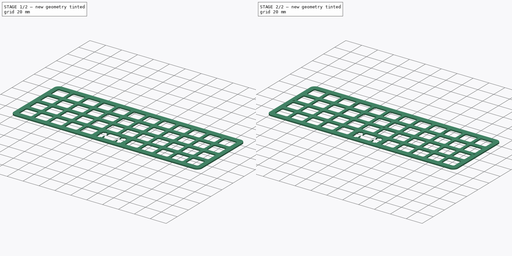
[diagram: build sequence overview — one tinted view per stage of 2, left to right]
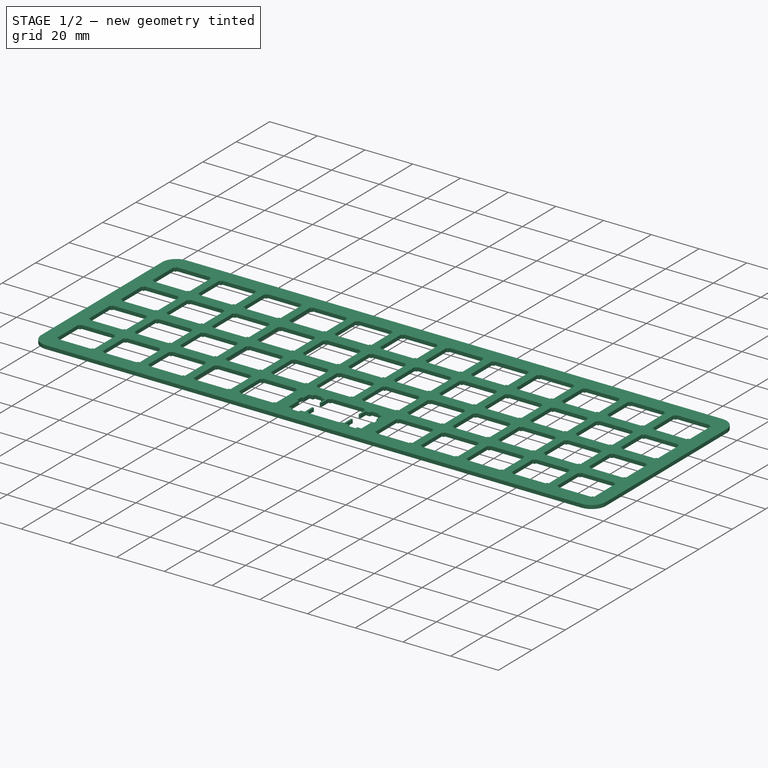
[diagram: stage 1 of 2 — iso view after this stage's code; geometry added in this stage tinted green]
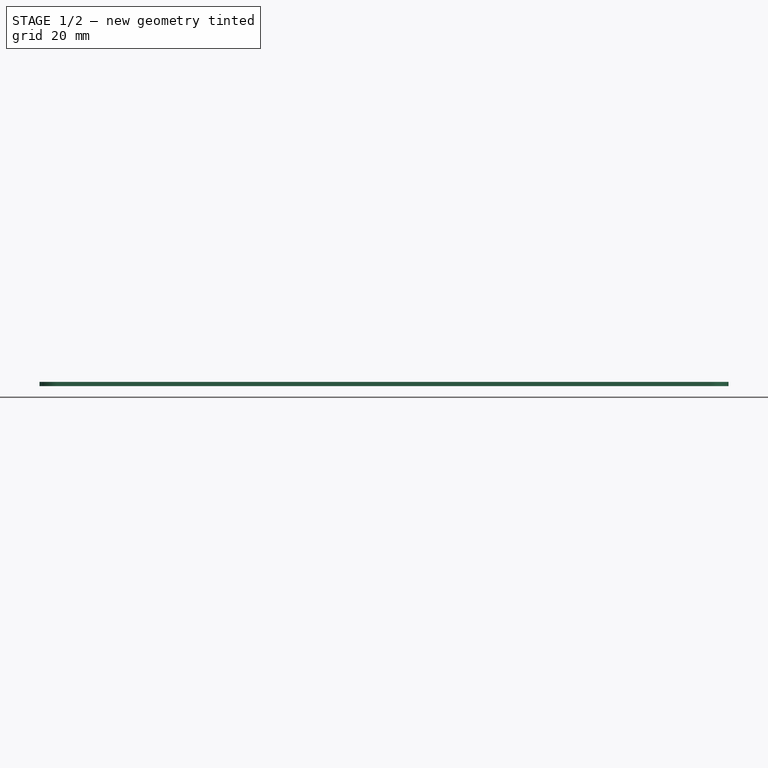
[diagram: stage 1 of 2 — front view after this stage's code; geometry added in this stage tinted green]
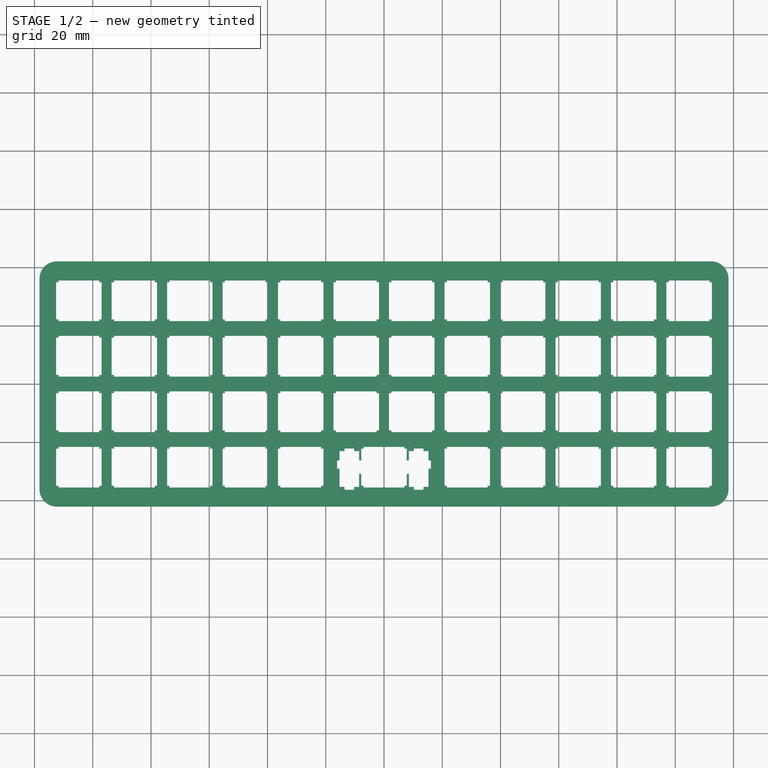
[diagram: stage 1 of 2 — top view after this stage's code; geometry added in this stage tinted green]
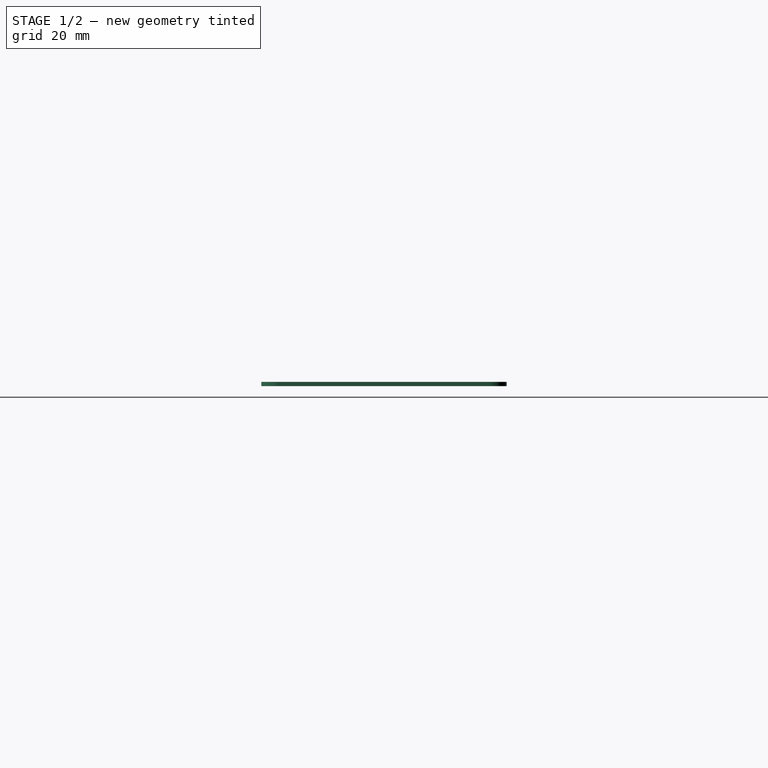
[diagram: stage 1 of 2 — right view after this stage's code; geometry added in this stage tinted green]
FCSTD DOCUMENT  (FreeCAD 1.0R39109 (Git))
Label: AIR40_Plate
License: All rights reserved
LicenseURL: https://en.wikipedia.org/wiki/All_rights_reserved
objects: Sketcher::SketchObject×3, PartDesign::SubShapeBinder×3, PartDesign::Pad×2, PartDesign::Hole×1, PartDesign::Body×1
note: 19 computed .brp shape members not serialized (recipe doc carries the construction recipe); baked Part::Feature solids carry a one-line shape summary decoded from their .brp

FEATURE [Sketcher::SketchObject] Sketch
  ArcFitTolerance = 1e-06
  FullyConstrained = false
  MakeInternals = false
  sketch-geometry (608):
    g0: LineSegment StartX=-114.298 StartY=-38.1007 StartZ=0 EndX=-114.298 EndY=38.0991 EndZ=0
    g1: LineSegment StartX=114.301 StartY=-38.1007 StartZ=0 EndX=-114.298 EndY=-38.1007 EndZ=0
    g2: LineSegment StartX=114.301 StartY=38.0991 StartZ=0 EndX=114.301 EndY=-38.1007 EndZ=0
    g3: LineSegment StartX=-114.298 StartY=38.0991 StartZ=0 EndX=114.301 EndY=38.0991 EndZ=0
    g4: LineSegment StartX=-8.5245 StartY=-26.2758 StartZ=0 EndX=-8.5245 EndY=-23.0456 EndZ=0
    g5: LineSegment StartX=-7.7995 StartY=-26.2758 StartZ=0 EndX=-8.5245 EndY=-26.2758 EndZ=0
    g6: LineSegment StartX=-7.7995 StartY=-22.1747 StartZ=0 EndX=-7.7995 EndY=-26.2758 EndZ=0
    g7: LineSegment StartX=-6.9985 StartY=-22.1747 StartZ=0 EndX=-7.7995 EndY=-22.1747 EndZ=0
    g8: LineSegment StartX=-6.9985 StartY=-21.5753 StartZ=0 EndX=-6.9985 EndY=-22.1747 EndZ=0
    g9: LineSegment StartX=7.0005 StartY=-21.5753 StartZ=0 EndX=-6.9985 EndY=-21.5753 EndZ=0
    g10: LineSegment StartX=7.0005 StartY=-22.1747 StartZ=0 EndX=7.0005 EndY=-21.5753 EndZ=0
    g11: LineSegment StartX=7.8015 StartY=-22.1747 StartZ=0 EndX=7.0005 EndY=-22.1747 EndZ=0
    g12: LineSegment StartX=7.8015 StartY=-26.2758 StartZ=0 EndX=7.8015 EndY=-22.1747 EndZ=0
    g13: LineSegment StartX=8.5265 StartY=-26.2758 StartZ=0 EndX=7.8015 EndY=-26.2758 EndZ=0
    g14: LineSegment StartX=8.5265 StartY=-23.0456 StartZ=0 EndX=8.5265 EndY=-26.2758 EndZ=0
    g15: LineSegment StartX=10.2515 StartY=-23.0456 StartZ=0 EndX=8.5265 EndY=-23.0456 EndZ=0
    g16: LineSegment StartX=10.2515 StartY=-22.1237 StartZ=0 EndX=10.2515 EndY=-23.0456 EndZ=0
    g17: LineSegment StartX=13.5505 StartY=-22.1237 StartZ=0 EndX=10.2515 EndY=-22.1237 EndZ=0
    g18: LineSegment StartX=13.5505 StartY=-23.0456 StartZ=0 EndX=13.5505 EndY=-22.1237 EndZ=0
    g19: LineSegment StartX=15.2755 StartY=-23.0456 StartZ=0 EndX=13.5505 EndY=-23.0456 EndZ=0
    g20: LineSegment StartX=15.2755 StartY=-26.2758 StartZ=0 EndX=15.2755 EndY=-23.0456 EndZ=0
    g21: LineSegment StartX=16.1015 StartY=-26.2758 StartZ=0 EndX=15.2755 EndY=-26.2758 EndZ=0
    g22: LineSegment StartX=16.1015 StartY=-29.0746 StartZ=0 EndX=16.1015 EndY=-26.2758 EndZ=0
    g23: LineSegment StartX=15.2755 StartY=-29.0746 StartZ=0 EndX=16.1015 EndY=-29.0746 EndZ=0
    g24: LineSegment StartX=15.2755 StartY=-35.3446 StartZ=0 EndX=15.2755 EndY=-29.0746 EndZ=0
    g25: LineSegment StartX=13.5505 StartY=-35.3446 StartZ=0 EndX=15.2755 EndY=-35.3446 EndZ=0
    g26: LineSegment StartX=13.5505 StartY=-36.3258 StartZ=0 EndX=13.5505 EndY=-35.3446 EndZ=0
    g27: LineSegment StartX=10.2515 StartY=-36.3258 StartZ=0 EndX=13.5505 EndY=-36.3258 EndZ=0
    g28: LineSegment StartX=10.2515 StartY=-35.3446 StartZ=0 EndX=10.2515 EndY=-36.3258 EndZ=0
    g29: LineSegment StartX=8.5265 StartY=-35.3446 StartZ=0 EndX=10.2515 EndY=-35.3446 EndZ=0
    g30: LineSegment StartX=8.5265 StartY=-30.8757 StartZ=0 EndX=8.5265 EndY=-35.3446 EndZ=0
    g31: LineSegment StartX=7.8015 StartY=-30.8757 StartZ=0 EndX=8.5265 EndY=-30.8757 EndZ=0
    g32: LineSegment StartX=7.8015 StartY=-34.9753 StartZ=0 EndX=7.8015 EndY=-30.8757 EndZ=0
    g33: LineSegment StartX=7.0005 StartY=-34.9753 StartZ=0 EndX=7.8015 EndY=-34.9753 EndZ=0
    g34: LineSegment StartX=7.0005 StartY=-35.5748 StartZ=0 EndX=7.0005 EndY=-34.9753 EndZ=0
    g35: LineSegment StartX=-6.9985 StartY=-35.5748 StartZ=0 EndX=7.0005 EndY=-35.5748 EndZ=0
    g36: LineSegment StartX=-6.9985 StartY=-34.9753 StartZ=0 EndX=-6.9985 EndY=-35.5748 EndZ=0
    g37: LineSegment StartX=-7.7995 StartY=-34.9753 StartZ=0 EndX=-6.9985 EndY=-34.9753 EndZ=0
    g38: LineSegment StartX=-7.7995 StartY=-30.8757 StartZ=0 EndX=-7.7995 EndY=-34.9753 EndZ=0
    g39: LineSegment StartX=-8.5245 StartY=-30.8757 StartZ=0 EndX=-7.7995 EndY=-30.8757 EndZ=0
    g40: LineSegment StartX=-8.5245 StartY=-35.3446 StartZ=0 EndX=-8.5245 EndY=-30.8757 EndZ=0
    g41: LineSegment StartX=-10.2495 StartY=-35.3446 StartZ=0 EndX=-8.5245 EndY=-35.3446 EndZ=0
    g42: LineSegment StartX=-10.2495 StartY=-36.3258 StartZ=0 EndX=-10.2495 EndY=-35.3446 EndZ=0
    g43: LineSegment StartX=-13.5485 StartY=-36.3258 StartZ=0 EndX=-10.2495 EndY=-36.3258 EndZ=0
    g44: LineSegment StartX=-13.5485 StartY=-35.3446 StartZ=0 EndX=-13.5485 EndY=-36.3258 EndZ=0
    g45: LineSegment StartX=-15.2753 StartY=-35.3446 StartZ=0 EndX=-13.5485 EndY=-35.3446 EndZ=0
    g46: LineSegment StartX=-15.2753 StartY=-29.0746 StartZ=0 EndX=-15.2753 EndY=-35.3446 EndZ=0
    g47: LineSegment StartX=-16.0994 StartY=-29.0746 StartZ=0 EndX=-15.2753 EndY=-29.0746 EndZ=0
    g48: LineSegment StartX=-16.0994 StartY=-26.2758 StartZ=0 EndX=-16.0994 EndY=-29.0746 EndZ=0
    g49: LineSegment StartX=-15.2753 StartY=-26.2758 StartZ=0 EndX=-16.0994 EndY=-26.2758 EndZ=0
    g50: LineSegment StartX=-15.2753 StartY=-23.0456 StartZ=0 EndX=-15.2753 EndY=-26.2758 EndZ=0
    g51: LineSegment StartX=-13.5485 StartY=-23.0456 StartZ=0 EndX=-15.2753 EndY=-23.0456 EndZ=0
    g52: LineSegment StartX=-13.5485 StartY=-22.1237 StartZ=0 EndX=-13.5485 EndY=-23.0456 EndZ=0
    g53: LineSegment StartX=-10.2495 StartY=-22.1237 StartZ=0 EndX=-13.5485 EndY=-22.1237 EndZ=0
    g54: LineSegment StartX=-10.2495 StartY=-23.0456 StartZ=0 EndX=-10.2495 EndY=-22.1237 EndZ=0
    g55: LineSegment StartX=-8.5245 StartY=-23.0456 StartZ=0 EndX=-10.2495 EndY=-23.0456 EndZ=0
    g56: LineSegment StartX=40.6265 StartY=-21.5753 StartZ=0 EndX=40.6265 EndY=-22.1747 EndZ=0
    g57: LineSegment StartX=54.6255 StartY=-21.5753 StartZ=0 EndX=40.6265 EndY=-21.5753 EndZ=0
    g58: LineSegment StartX=54.6255 StartY=-22.1747 StartZ=0 EndX=54.6255 EndY=-21.5753 EndZ=0
    g59: LineSegment StartX=55.4265 StartY=-22.1747 StartZ=0 EndX=54.6255 EndY=-22.1747 EndZ=0
    g60: LineSegment StartX=55.4265 StartY=-34.9753 StartZ=0 EndX=55.4265 EndY=-22.1747 EndZ=0
    g61: LineSegment StartX=54.6255 StartY=-34.9753 StartZ=0 EndX=55.4265 EndY=-34.9753 EndZ=0
    g62: LineSegment StartX=54.6255 StartY=-35.5748 StartZ=0 EndX=54.6255 EndY=-34.9753 EndZ=0
    g63: LineSegment StartX=40.6265 StartY=-35.5748 StartZ=0 EndX=54.6255 EndY=-35.5748 EndZ=0
    g64: LineSegment StartX=40.6265 StartY=-34.9753 StartZ=0 EndX=40.6265 EndY=-35.5748 EndZ=0
    g65: LineSegment StartX=39.8255 StartY=-34.9753 StartZ=0 EndX=40.6265 EndY=-34.9753 EndZ=0
    g66: LineSegment StartX=39.8255 StartY=-22.1747 StartZ=0 EndX=39.8255 EndY=-34.9753 EndZ=0
    g67: LineSegment StartX=40.6265 StartY=-22.1747 StartZ=0 EndX=39.8255 EndY=-22.1747 EndZ=0
    g68: LineSegment StartX=77.9255 StartY=-22.1747 StartZ=0 EndX=77.9255 EndY=-34.9753 EndZ=0
    g69: LineSegment StartX=78.7265 StartY=-22.1747 StartZ=0 EndX=77.9255 EndY=-22.1747 EndZ=0
    g70: LineSegment StartX=78.7265 StartY=-21.5753 StartZ=0 EndX=78.7265 EndY=-22.1747 EndZ=0
    g71: LineSegment StartX=92.7255 StartY=-21.5753 StartZ=0 EndX=78.7265 EndY=-21.5753 EndZ=0
    g72: LineSegment StartX=92.7255 StartY=-22.1747 StartZ=0 EndX=92.7255 EndY=-21.5753 EndZ=0
    g73: LineSegment StartX=93.5265 StartY=-22.1747 StartZ=0 EndX=92.7255 EndY=-22.1747 EndZ=0
    g74: LineSegment StartX=93.5265 StartY=-34.9753 StartZ=0 EndX=93.5265 EndY=-22.1747 EndZ=0
    g75: LineSegment StartX=92.7255 StartY=-34.9753 StartZ=0 EndX=93.5265 EndY=-34.9753 EndZ=0
    g76: LineSegment StartX=92.7255 StartY=-35.5748 StartZ=0 EndX=92.7255 EndY=-34.9753 EndZ=0
    g77: LineSegment StartX=78.7265 StartY=-35.5748 StartZ=0 EndX=92.7255 EndY=-35.5748 EndZ=0
    g78: LineSegment StartX=78.7265 StartY=-34.9753 StartZ=0 EndX=78.7265 EndY=-35.5748 EndZ=0
    g79: LineSegment StartX=77.9255 StartY=-34.9753 StartZ=0 EndX=78.7265 EndY=-34.9753 EndZ=0
    g80: LineSegment StartX=73.6755 StartY=-35.5748 StartZ=0 EndX=73.6755 EndY=-34.9753 EndZ=0
    g81: LineSegment StartX=59.6765 StartY=-35.5748 StartZ=0 EndX=73.6755 EndY=-35.5748 EndZ=0
    g82: LineSegment StartX=59.6765 StartY=-34.9753 StartZ=0 EndX=59.6765 EndY=-35.5748 EndZ=0
    g83: LineSegment StartX=58.8755 StartY=-34.9753 StartZ=0 EndX=59.6765 EndY=-34.9753 EndZ=0
    g84: LineSegment StartX=58.8755 StartY=-22.1747 StartZ=0 EndX=58.8755 EndY=-34.9753 EndZ=0
    g85: LineSegment StartX=59.6765 StartY=-22.1747 StartZ=0 EndX=58.8755 EndY=-22.1747 EndZ=0
    g86: LineSegment StartX=59.6765 StartY=-21.5753 StartZ=0 EndX=59.6765 EndY=-22.1747 EndZ=0
    g87: LineSegment StartX=73.6755 StartY=-21.5753 StartZ=0 EndX=59.6765 EndY=-21.5753 EndZ=0
    g88: LineSegment StartX=73.6755 StartY=-22.1747 StartZ=0 EndX=73.6755 EndY=-21.5753 EndZ=0
    g89: LineSegment StartX=74.4765 StartY=-22.1747 StartZ=0 EndX=73.6755 EndY=-22.1747 EndZ=0
    g90: LineSegment StartX=74.4765 StartY=-34.9753 StartZ=0 EndX=74.4765 EndY=-22.1747 EndZ=0
    g91: LineSegment StartX=73.6755 StartY=-34.9753 StartZ=0 EndX=74.4765 EndY=-34.9753 EndZ=0
    g92: LineSegment StartX=96.9755 StartY=-34.9753 StartZ=0 EndX=97.7765 EndY=-34.9753 EndZ=0
    g93: LineSegment StartX=96.9755 StartY=-22.1747 StartZ=0 EndX=96.9755 EndY=-34.9753 EndZ=0
    g94: LineSegment StartX=97.7765 StartY=-22.1747 StartZ=0 EndX=96.9755 EndY=-22.1747 EndZ=0
    g95: LineSegment StartX=97.7765 StartY=-21.5753 StartZ=0 EndX=97.7765 EndY=-22.1747 EndZ=0
    g96: LineSegment StartX=111.776 StartY=-21.5753 StartZ=0 EndX=97.7765 EndY=-21.5753 EndZ=0
    g97: LineSegment StartX=111.776 StartY=-22.1747 StartZ=0 EndX=111.776 EndY=-21.5753 EndZ=0
    g98: LineSegment StartX=112.576 StartY=-22.1747 StartZ=0 EndX=111.776 EndY=-22.1747 EndZ=0
    g99: LineSegment StartX=112.576 StartY=-34.9753 StartZ=0 EndX=112.576 EndY=-22.1747 EndZ=0
    g100: LineSegment StartX=111.776 StartY=-34.9753 StartZ=0 EndX=112.576 EndY=-34.9753 EndZ=0
    g101: LineSegment StartX=111.776 StartY=-35.5748 StartZ=0 EndX=111.776 EndY=-34.9753 EndZ=0
    g102: LineSegment StartX=97.7765 StartY=-35.5748 StartZ=0 EndX=111.776 EndY=-35.5748 EndZ=0
    g103: LineSegment StartX=97.7765 StartY=-34.9753 StartZ=0 EndX=97.7765 EndY=-35.5748 EndZ=0
    g104: LineSegment StartX=35.5755 StartY=-22.1747 StartZ=0 EndX=35.5755 EndY=-21.5753 EndZ=0
    g105: LineSegment StartX=36.3765 StartY=-22.1747 StartZ=0 EndX=35.5755 EndY=-22.1747 EndZ=0
    g106: LineSegment StartX=36.3765 StartY=-34.9753 StartZ=0 EndX=36.3765 EndY=-22.1747 EndZ=0
    g107: LineSegment StartX=35.5755 StartY=-34.9753 StartZ=0 EndX=36.3765 EndY=-34.9753 EndZ=0
    g108: LineSegment StartX=35.5755 StartY=-35.5748 StartZ=0 EndX=35.5755 EndY=-34.9753 EndZ=0
    g109: LineSegment StartX=21.5765 StartY=-35.5748 StartZ=0 EndX=35.5755 EndY=-35.5748 EndZ=0
    g110: LineSegment StartX=21.5765 StartY=-34.9753 StartZ=0 EndX=21.5765 EndY=-35.5748 EndZ=0
    g111: LineSegment StartX=20.7755 StartY=-34.9753 StartZ=0 EndX=21.5765 EndY=-34.9753 EndZ=0
    g112: LineSegment StartX=20.7755 StartY=-22.1747 StartZ=0 EndX=20.7755 EndY=-34.9753 EndZ=0
    g113: LineSegment StartX=21.5765 StartY=-22.1747 StartZ=0 EndX=20.7755 EndY=-22.1747 EndZ=0
    g114: LineSegment StartX=21.5765 StartY=-21.5753 StartZ=0 EndX=21.5765 EndY=-22.1747 EndZ=0
    g115: LineSegment StartX=35.5755 StartY=-21.5753 StartZ=0 EndX=21.5765 EndY=-21.5753 EndZ=0
    g116: LineSegment StartX=39.8255 StartY=-3.1247 StartZ=0 EndX=39.8255 EndY=-15.9253 EndZ=0
    g117: LineSegment StartX=40.6265 StartY=-3.1247 StartZ=0 EndX=39.8255 EndY=-3.1247 EndZ=0
    g118: LineSegment StartX=40.6265 StartY=-2.5254 StartZ=0 EndX=40.6265 EndY=-3.1247 EndZ=0
    g119: LineSegment StartX=54.6255 StartY=-2.5254 StartZ=0 EndX=40.6265 EndY=-2.5254 EndZ=0
    g120: LineSegment StartX=54.6255 StartY=-3.1247 StartZ=0 EndX=54.6255 EndY=-2.5254 EndZ=0
    g121: LineSegment StartX=55.4265 StartY=-3.1247 StartZ=0 EndX=54.6255 EndY=-3.1247 EndZ=0
    g122: LineSegment StartX=55.4265 StartY=-15.9253 StartZ=0 EndX=55.4265 EndY=-3.1247 EndZ=0
    g123: LineSegment StartX=54.6255 StartY=-15.9253 StartZ=0 EndX=55.4265 EndY=-15.9253 EndZ=0
    g124: LineSegment StartX=54.6255 StartY=-16.5248 StartZ=0 EndX=54.6255 EndY=-15.9253 EndZ=0
    g125: LineSegment StartX=40.6265 StartY=-16.5248 StartZ=0 EndX=54.6255 EndY=-16.5248 EndZ=0
    g126: LineSegment StartX=40.6265 StartY=-15.9253 StartZ=0 EndX=40.6265 EndY=-16.5248 EndZ=0
    g127: LineSegment StartX=39.8255 StartY=-15.9253 StartZ=0 EndX=40.6265 EndY=-15.9253 EndZ=0
    g128: LineSegment StartX=58.8755 StartY=-3.1247 StartZ=0 EndX=58.8755 EndY=-15.9253 EndZ=0
    g129: LineSegment StartX=59.6765 StartY=-3.1247 StartZ=0 EndX=58.8755 EndY=-3.1247 EndZ=0
    g130: LineSegment StartX=59.6765 StartY=-2.5254 StartZ=0 EndX=59.6765 EndY=-3.1247 EndZ=0
    g131: LineSegment StartX=73.6755 StartY=-2.5254 StartZ=0 EndX=59.6765 EndY=-2.5254 EndZ=0
    g132: LineSegment StartX=73.6755 StartY=-3.1247 StartZ=0 EndX=73.6755 EndY=-2.5254 EndZ=0
    g133: LineSegment StartX=74.4765 StartY=-3.1247 StartZ=0 EndX=73.6755 EndY=-3.1247 EndZ=0
    g134: LineSegment StartX=74.4765 StartY=-15.9253 StartZ=0 EndX=74.4765 EndY=-3.1247 EndZ=0
    g135: LineSegment StartX=73.6755 StartY=-15.9253 StartZ=0 EndX=74.4765 EndY=-15.9253 EndZ=0
    g136: LineSegment StartX=73.6755 StartY=-16.5248 StartZ=0 EndX=73.6755 EndY=-15.9253 EndZ=0
    g137: LineSegment StartX=59.6765 StartY=-16.5248 StartZ=0 EndX=73.6755 EndY=-16.5248 EndZ=0
    g138: LineSegment StartX=59.6765 StartY=-15.9253 StartZ=0 EndX=59.6765 EndY=-16.5248 EndZ=0
    g139: LineSegment StartX=58.8755 StartY=-15.9253 StartZ=0 EndX=59.6765 EndY=-15.9253 EndZ=0
    g140: LineSegment StartX=92.7255 StartY=-16.5248 StartZ=0 EndX=92.7255 EndY=-15.9253 EndZ=0
    g141: LineSegment StartX=78.7265 StartY=-16.5248 StartZ=0 EndX=92.7255 EndY=-16.5248 EndZ=0
    g142: LineSegment StartX=78.7265 StartY=-15.9253 StartZ=0 EndX=78.7265 EndY=-16.5248 EndZ=0
    g143: LineSegment StartX=77.9255 StartY=-15.9253 StartZ=0 EndX=78.7265 EndY=-15.9253 EndZ=0
    g144: LineSegment StartX=77.9255 StartY=-3.1247 StartZ=0 EndX=77.9255 EndY=-15.9253 EndZ=0
    g145: LineSegment StartX=78.7265 StartY=-3.1247 StartZ=0 EndX=77.9255 EndY=-3.1247 EndZ=0
    g146: LineSegment StartX=78.7265 StartY=-2.5254 StartZ=0 EndX=78.7265 EndY=-3.1247 EndZ=0
    g147: LineSegment StartX=92.7255 StartY=-2.5254 StartZ=0 EndX=78.7265 EndY=-2.5254 EndZ=0
    g148: LineSegment StartX=92.7255 StartY=-3.1247 StartZ=0 EndX=92.7255 EndY=-2.5254 EndZ=0
    g149: LineSegment StartX=93.5265 StartY=-3.1247 StartZ=0 EndX=92.7255 EndY=-3.1247 EndZ=0
    g150: LineSegment StartX=93.5265 StartY=-15.9253 StartZ=0 EndX=93.5265 EndY=-3.1247 EndZ=0
    g151: LineSegment StartX=92.7255 StartY=-15.9253 StartZ=0 EndX=93.5265 EndY=-15.9253 EndZ=0
    g152: LineSegment StartX=16.5255 StartY=-16.5248 StartZ=0 EndX=16.5255 EndY=-15.9253 EndZ=0
    g153: LineSegment StartX=2.5245 StartY=-16.5248 StartZ=0 EndX=16.5255 EndY=-16.5248 EndZ=0
    g154: LineSegment StartX=2.5245 StartY=-15.9253 StartZ=0 EndX=2.5245 EndY=-16.5248 EndZ=0
    g155: LineSegment StartX=1.7255 StartY=-15.9253 StartZ=0 EndX=2.5245 EndY=-15.9253 EndZ=0
    g156: LineSegment StartX=1.7255 StartY=-3.1247 StartZ=0 EndX=1.7255 EndY=-15.9253 EndZ=0
    g157: LineSegment StartX=2.5245 StartY=-3.1247 StartZ=0 EndX=1.7255 EndY=-3.1247 EndZ=0
    g158: LineSegment StartX=2.5245 StartY=-2.5254 StartZ=0 EndX=2.5245 EndY=-3.1247 EndZ=0
    g159: LineSegment StartX=16.5255 StartY=-2.5254 StartZ=0 EndX=2.5245 EndY=-2.5254 EndZ=0
    g160: LineSegment StartX=16.5255 StartY=-3.1247 StartZ=0 EndX=16.5255 EndY=-2.5254 EndZ=0
    g161: LineSegment StartX=17.3265 StartY=-3.1247 StartZ=0 EndX=16.5255 EndY=-3.1247 EndZ=0
    g162: LineSegment StartX=17.3265 StartY=-15.9253 StartZ=0 EndX=17.3265 EndY=-3.1247 EndZ=0
    g163: LineSegment StartX=16.5255 StartY=-15.9253 StartZ=0 EndX=17.3265 EndY=-15.9253 EndZ=0
    g164: LineSegment StartX=97.7765 StartY=-16.5248 StartZ=0 EndX=111.776 EndY=-16.5248 EndZ=0
    g165: LineSegment StartX=97.7765 StartY=-15.9253 StartZ=0 EndX=97.7765 EndY=-16.5248 EndZ=0
    g166: LineSegment StartX=96.9755 StartY=-15.9253 StartZ=0 EndX=97.7765 EndY=-15.9253 EndZ=0
    g167: LineSegment StartX=96.9755 StartY=-3.1247 StartZ=0 EndX=96.9755 EndY=-15.9253 EndZ=0
    g168: LineSegment StartX=97.7765 StartY=-3.1247 StartZ=0 EndX=96.9755 EndY=-3.1247 EndZ=0
    g169: LineSegment StartX=97.7765 StartY=-2.5254 StartZ=0 EndX=97.7765 EndY=-3.1247 EndZ=0
    g170: LineSegment StartX=111.776 StartY=-2.5254 StartZ=0 EndX=97.7765 EndY=-2.5254 EndZ=0
    g171: LineSegment StartX=111.776 StartY=-3.1247 StartZ=0 EndX=111.776 EndY=-2.5254 EndZ=0
    g172: LineSegment StartX=112.576 StartY=-3.1247 StartZ=0 EndX=111.776 EndY=-3.1247 EndZ=0
    g173: LineSegment StartX=112.576 StartY=-15.9253 StartZ=0 EndX=112.576 EndY=-3.1247 EndZ=0
    g174: LineSegment StartX=111.776 StartY=-15.9253 StartZ=0 EndX=112.576 EndY=-15.9253 EndZ=0
    g175: LineSegment StartX=111.776 StartY=-16.5248 StartZ=0 EndX=111.776 EndY=-15.9253 EndZ=0
    g176: LineSegment StartX=36.3765 StartY=-3.1247 StartZ=0 EndX=35.5755 EndY=-3.1247 EndZ=0
    g177: LineSegment StartX=36.3765 StartY=-15.9253 StartZ=0 EndX=36.3765 EndY=-3.1247 EndZ=0
    g178: LineSegment StartX=35.5755 StartY=-15.9253 StartZ=0 EndX=36.3765 EndY=-15.9253 EndZ=0
    g179: LineSegment StartX=35.5755 StartY=-16.5248 StartZ=0 EndX=35.5755 EndY=-15.9253 EndZ=0
    g180: LineSegment StartX=21.5765 StartY=-16.5248 StartZ=0 EndX=35.5755 EndY=-16.5248 EndZ=0
    g181: LineSegment StartX=21.5765 StartY=-15.9253 StartZ=0 EndX=21.5765 EndY=-16.5248 EndZ=0
    g182: LineSegment StartX=20.7755 StartY=-15.9253 StartZ=0 EndX=21.5765 EndY=-15.9253 EndZ=0
    g183: LineSegment StartX=20.7755 StartY=-3.1247 StartZ=0 EndX=20.7755 EndY=-15.9253 EndZ=0
    g184: LineSegment StartX=21.5765 StartY=-3.1247 StartZ=0 EndX=20.7755 EndY=-3.1247 EndZ=0
    g185: LineSegment StartX=21.5765 StartY=-2.5254 StartZ=0 EndX=21.5765 EndY=-3.1247 EndZ=0
    g186: LineSegment StartX=35.5755 StartY=-2.5254 StartZ=0 EndX=21.5765 EndY=-2.5254 EndZ=0
    g187: LineSegment StartX=35.5755 StartY=-3.1247 StartZ=0 EndX=35.5755 EndY=-2.5254 EndZ=0
    g188: LineSegment StartX=-55.4246 StartY=-34.9753 StartZ=0 EndX=-54.6238 EndY=-34.9753 EndZ=0
    g189: LineSegment StartX=-55.4246 StartY=-22.1747 StartZ=0 EndX=-55.4246 EndY=-34.9753 EndZ=0
    g190: LineSegment StartX=-54.6238 StartY=-22.1747 StartZ=0 EndX=-55.4246 EndY=-22.1747 EndZ=0
    g191: LineSegment StartX=-54.6238 StartY=-21.5753 StartZ=0 EndX=-54.6238 EndY=-22.1747 EndZ=0
    g192: LineSegment StartX=-40.6245 StartY=-21.5753 StartZ=0 EndX=-54.6238 EndY=-21.5753 EndZ=0
    g193: LineSegment StartX=-40.6245 StartY=-22.1747 StartZ=0 EndX=-40.6245 EndY=-21.5753 EndZ=0
    g194: LineSegment StartX=-39.8237 StartY=-22.1747 StartZ=0 EndX=-40.6245 EndY=-22.1747 EndZ=0
    g195: LineSegment StartX=-39.8237 StartY=-34.9753 StartZ=0 EndX=-39.8237 EndY=-22.1747 EndZ=0
    g196: LineSegment StartX=-40.6245 StartY=-34.9753 StartZ=0 EndX=-39.8237 EndY=-34.9753 EndZ=0
    g197: LineSegment StartX=-40.6245 StartY=-35.5748 StartZ=0 EndX=-40.6245 EndY=-34.9753 EndZ=0
    g198: LineSegment StartX=-54.6238 StartY=-35.5748 StartZ=0 EndX=-40.6245 EndY=-35.5748 EndZ=0
    g199: LineSegment StartX=-54.6238 StartY=-34.9753 StartZ=0 EndX=-54.6238 EndY=-35.5748 EndZ=0
    g200: LineSegment StartX=-74.4746 StartY=-22.1747 StartZ=0 EndX=-74.4746 EndY=-34.9753 EndZ=0
    g201: LineSegment StartX=-73.6738 StartY=-22.1747 StartZ=0 EndX=-74.4746 EndY=-22.1747 EndZ=0
    g202: LineSegment StartX=-73.6738 StartY=-21.5753 StartZ=0 EndX=-73.6738 EndY=-22.1747 EndZ=0
    g203: LineSegment StartX=-59.6745 StartY=-21.5753 StartZ=0 EndX=-73.6738 EndY=-21.5753 EndZ=0
    g204: LineSegment StartX=-59.6745 StartY=-22.1747 StartZ=0 EndX=-59.6745 EndY=-21.5753 EndZ=0
    g205: LineSegment StartX=-58.8737 StartY=-22.1747 StartZ=0 EndX=-59.6745 EndY=-22.1747 EndZ=0
    g206: LineSegment StartX=-58.8737 StartY=-34.9753 StartZ=0 EndX=-58.8737 EndY=-22.1747 EndZ=0
    g207: LineSegment StartX=-59.6745 StartY=-34.9753 StartZ=0 EndX=-58.8737 EndY=-34.9753 EndZ=0
    g208: LineSegment StartX=-59.6745 StartY=-35.5748 StartZ=0 EndX=-59.6745 EndY=-34.9753 EndZ=0
    g209: LineSegment StartX=-73.6738 StartY=-35.5748 StartZ=0 EndX=-59.6745 EndY=-35.5748 EndZ=0
    g210: LineSegment StartX=-73.6738 StartY=-34.9753 StartZ=0 EndX=-73.6738 EndY=-35.5748 EndZ=0
    g211: LineSegment StartX=-74.4746 StartY=-34.9753 StartZ=0 EndX=-73.6738 EndY=-34.9753 EndZ=0
    g212: LineSegment StartX=2.5245 StartY=16.5247 StartZ=0 EndX=2.5245 EndY=15.9253 EndZ=0
    g213: LineSegment StartX=16.5255 StartY=16.5247 StartZ=0 EndX=2.5245 EndY=16.5247 EndZ=0
    g214: LineSegment StartX=16.5255 StartY=15.9253 StartZ=0 EndX=16.5255 EndY=16.5247 EndZ=0
    g215: LineSegment StartX=17.3265 StartY=15.9253 StartZ=0 EndX=16.5255 EndY=15.9253 EndZ=0
    g216: LineSegment StartX=17.3265 StartY=3.1247 StartZ=0 EndX=17.3265 EndY=15.9253 EndZ=0
    g217: LineSegment StartX=16.5255 StartY=3.1247 StartZ=0 EndX=17.3265 EndY=3.1247 EndZ=0
    g218: LineSegment StartX=16.5255 StartY=2.5254 StartZ=0 EndX=16.5255 EndY=3.1247 EndZ=0
    g219: LineSegment StartX=2.5245 StartY=2.5254 StartZ=0 EndX=16.5255 EndY=2.5254 EndZ=0
    g220: LineSegment StartX=2.5245 StartY=3.1247 StartZ=0 EndX=2.5245 EndY=2.5254 EndZ=0
    g221: LineSegment StartX=1.7255 StartY=3.1247 StartZ=0 EndX=2.5245 EndY=3.1247 EndZ=0
    g222: LineSegment StartX=1.7255 StartY=15.9253 StartZ=0 EndX=1.7255 EndY=3.1247 EndZ=0
    g223: LineSegment StartX=2.5245 StartY=15.9253 StartZ=0 EndX=1.7255 EndY=15.9253 EndZ=0
    g224: LineSegment StartX=55.4265 StartY=22.1747 StartZ=0 EndX=55.4265 EndY=34.9753 EndZ=0
    g225: LineSegment StartX=54.6255 StartY=22.1747 StartZ=0 EndX=55.4265 EndY=22.1747 EndZ=0
    g226: LineSegment StartX=54.6255 StartY=21.5754 StartZ=0 EndX=54.6255 EndY=22.1747 EndZ=0
    g227: LineSegment StartX=40.6265 StartY=21.5754 StartZ=0 EndX=54.6255 EndY=21.5754 EndZ=0
    g228: LineSegment StartX=40.6265 StartY=22.1747 StartZ=0 EndX=40.6265 EndY=21.5754 EndZ=0
    g229: LineSegment StartX=39.8255 StartY=22.1747 StartZ=0 EndX=40.6265 EndY=22.1747 EndZ=0
    g230: LineSegment StartX=39.8255 StartY=34.9753 StartZ=0 EndX=39.8255 EndY=22.1747 EndZ=0
    g231: LineSegment StartX=40.6265 StartY=34.9753 StartZ=0 EndX=39.8255 EndY=34.9753 EndZ=0
    g232: LineSegment StartX=40.6265 StartY=35.5747 StartZ=0 EndX=40.6265 EndY=34.9753 EndZ=0
    g233: LineSegment StartX=54.6255 StartY=35.5747 StartZ=0 EndX=40.6265 EndY=35.5747 EndZ=0
    g234: LineSegment StartX=54.6255 StartY=34.9753 StartZ=0 EndX=54.6255 EndY=35.5747 EndZ=0
    g235: LineSegment StartX=55.4265 StartY=34.9753 StartZ=0 EndX=54.6255 EndY=34.9753 EndZ=0
    g236: LineSegment StartX=2.5245 StartY=21.5754 StartZ=0 EndX=16.5255 EndY=21.5754 EndZ=0
    g237: LineSegment StartX=2.5245 StartY=22.1747 StartZ=0 EndX=2.5245 EndY=21.5754 EndZ=0
    g238: LineSegment StartX=1.7255 StartY=22.1747 StartZ=0 EndX=2.5245 EndY=22.1747 EndZ=0
    g239: LineSegment StartX=1.7255 StartY=34.9753 StartZ=0 EndX=1.7255 EndY=22.1747 EndZ=0
    g240: LineSegment StartX=2.5245 StartY=34.9753 StartZ=0 EndX=1.7255 EndY=34.9753 EndZ=0
    g241: LineSegment StartX=2.5245 StartY=35.5747 StartZ=0 EndX=2.5245 EndY=34.9753 EndZ=0
    g242: LineSegment StartX=16.5255 StartY=35.5747 StartZ=0 EndX=2.5245 EndY=35.5747 EndZ=0
    g243: LineSegment StartX=16.5255 StartY=34.9753 StartZ=0 EndX=16.5255 EndY=35.5747 EndZ=0
    g244: LineSegment StartX=17.3265 StartY=34.9753 StartZ=0 EndX=16.5255 EndY=34.9753 EndZ=0
    g245: LineSegment StartX=17.3265 StartY=22.1747 StartZ=0 EndX=17.3265 EndY=34.9753 EndZ=0
    g246: LineSegment StartX=16.5255 StartY=22.1747 StartZ=0 EndX=17.3265 EndY=22.1747 EndZ=0
    g247: LineSegment StartX=16.5255 StartY=21.5754 StartZ=0 EndX=16.5255 EndY=22.1747 EndZ=0
    g248: LineSegment StartX=59.6765 StartY=16.5247 StartZ=0 EndX=59.6765 EndY=15.9253 EndZ=0
    g249: LineSegment StartX=73.6755 StartY=16.5247 StartZ=0 EndX=59.6765 EndY=16.5247 EndZ=0
    g250: LineSegment StartX=73.6755 StartY=15.9253 StartZ=0 EndX=73.6755 EndY=16.5247 EndZ=0
    g251: LineSegment StartX=74.4765 StartY=15.9253 StartZ=0 EndX=73.6755 EndY=15.9253 EndZ=0
    g252: LineSegment StartX=74.4765 StartY=3.1247 StartZ=0 EndX=74.4765 EndY=15.9253 EndZ=0
    g253: LineSegment StartX=73.6755 StartY=3.1247 StartZ=0 EndX=74.4765 EndY=3.1247 EndZ=0
    g254: LineSegment StartX=73.6755 StartY=2.5254 StartZ=0 EndX=73.6755 EndY=3.1247 EndZ=0
    g255: LineSegment StartX=59.6765 StartY=2.5254 StartZ=0 EndX=73.6755 EndY=2.5254 EndZ=0
    g256: LineSegment StartX=59.6765 StartY=3.1247 StartZ=0 EndX=59.6765 EndY=2.5254 EndZ=0
    g257: LineSegment StartX=58.8755 StartY=3.1247 StartZ=0 EndX=59.6765 EndY=3.1247 EndZ=0
    g258: LineSegment StartX=58.8755 StartY=15.9253 StartZ=0 EndX=58.8755 EndY=3.1247 EndZ=0
    g259: LineSegment StartX=59.6765 StartY=15.9253 StartZ=0 EndX=58.8755 EndY=15.9253 EndZ=0
    g260: LineSegment StartX=21.5765 StartY=34.9753 StartZ=0 EndX=20.7755 EndY=34.9753 EndZ=0
    g261: LineSegment StartX=21.5765 StartY=35.5747 StartZ=0 EndX=21.5765 EndY=34.9753 EndZ=0
    g262: LineSegment StartX=35.5755 StartY=35.5747 StartZ=0 EndX=21.5765 EndY=35.5747 EndZ=0
    g263: LineSegment StartX=35.5755 StartY=34.9753 StartZ=0 EndX=35.5755 EndY=35.5747 EndZ=0
    g264: LineSegment StartX=36.3765 StartY=34.9753 StartZ=0 EndX=35.5755 EndY=34.9753 EndZ=0
    g265: LineSegment StartX=36.3765 StartY=22.1747 StartZ=0 EndX=36.3765 EndY=34.9753 EndZ=0
    g266: LineSegment StartX=35.5755 StartY=22.1747 StartZ=0 EndX=36.3765 EndY=22.1747 EndZ=0
    g267: LineSegment StartX=35.5755 StartY=21.5754 StartZ=0 EndX=35.5755 EndY=22.1747 EndZ=0
    g268: LineSegment StartX=21.5765 StartY=21.5754 StartZ=0 EndX=35.5755 EndY=21.5754 EndZ=0
    g269: LineSegment StartX=21.5765 StartY=22.1747 StartZ=0 EndX=21.5765 EndY=21.5754 EndZ=0
    g270: LineSegment StartX=20.7755 StartY=22.1747 StartZ=0 EndX=21.5765 EndY=22.1747 EndZ=0
    g271: LineSegment StartX=20.7755 StartY=34.9753 StartZ=0 EndX=20.7755 EndY=22.1747 EndZ=0
    g272: LineSegment StartX=55.4265 StartY=15.9253 StartZ=0 EndX=54.6255 EndY=15.9253 EndZ=0
    g273: LineSegment StartX=55.4265 StartY=3.1247 StartZ=0 EndX=55.4265 EndY=15.9253 EndZ=0
    g274: LineSegment StartX=54.6255 StartY=3.1247 StartZ=0 EndX=55.4265 EndY=3.1247 EndZ=0
    g275: LineSegment StartX=54.6255 StartY=2.5254 StartZ=0 EndX=54.6255 EndY=3.1247 EndZ=0
    g276: LineSegment StartX=40.6265 StartY=2.5254 StartZ=0 EndX=54.6255 EndY=2.5254 EndZ=0
    g277: LineSegment StartX=40.6265 StartY=3.1247 StartZ=0 EndX=40.6265 EndY=2.5254 EndZ=0
    g278: LineSegment StartX=39.8255 StartY=3.1247 StartZ=0 EndX=40.6265 EndY=3.1247 EndZ=0
    g279: LineSegment StartX=39.8255 StartY=15.9253 StartZ=0 EndX=39.8255 EndY=3.1247 EndZ=0
    g280: LineSegment StartX=40.6265 StartY=15.9253 StartZ=0 EndX=39.8255 EndY=15.9253 EndZ=0
    g281: LineSegment StartX=40.6265 StartY=16.5247 StartZ=0 EndX=40.6265 EndY=15.9253 EndZ=0
    g282: LineSegment StartX=54.6255 StartY=16.5247 StartZ=0 EndX=40.6265 EndY=16.5247 EndZ=0
    g283: LineSegment StartX=54.6255 StartY=15.9253 StartZ=0 EndX=54.6255 EndY=16.5247 EndZ=0
    g284: LineSegment StartX=20.7755 StartY=3.1247 StartZ=0 EndX=21.5765 EndY=3.1247 EndZ=0
    g285: LineSegment StartX=20.7755 StartY=15.9253 StartZ=0 EndX=20.7755 EndY=3.1247 EndZ=0
    g286: LineSegment StartX=21.5765 StartY=15.9253 StartZ=0 EndX=20.7755 EndY=15.9253 EndZ=0
    g287: LineSegment StartX=21.5765 StartY=16.5247 StartZ=0 EndX=21.5765 EndY=15.9253 EndZ=0
    g288: LineSegment StartX=35.5755 StartY=16.5247 StartZ=0 EndX=21.5765 EndY=16.5247 EndZ=0
    g289: LineSegment StartX=35.5755 StartY=15.9253 StartZ=0 EndX=35.5755 EndY=16.5247 EndZ=0
    g290: LineSegment StartX=36.3765 StartY=15.9253 StartZ=0 EndX=35.5755 EndY=15.9253 EndZ=0
    g291: LineSegment StartX=36.3765 StartY=3.1247 StartZ=0 EndX=36.3765 EndY=15.9253 EndZ=0
    g292: LineSegment StartX=35.5755 StartY=3.1247 StartZ=0 EndX=36.3765 EndY=3.1247 EndZ=0
    g293: LineSegment StartX=35.5755 StartY=2.5254 StartZ=0 EndX=35.5755 EndY=3.1247 EndZ=0
    g294: LineSegment StartX=21.5765 StartY=2.5254 StartZ=0 EndX=35.5755 EndY=2.5254 EndZ=0
    g295: LineSegment StartX=21.5765 StartY=3.1247 StartZ=0 EndX=21.5765 EndY=2.5254 EndZ=0
    g296: LineSegment StartX=97.7765 StartY=34.9753 StartZ=0 EndX=96.9755 EndY=34.9753 EndZ=0
    g297: LineSegment StartX=97.7765 StartY=35.5747 StartZ=0 EndX=97.7765 EndY=34.9753 EndZ=0
    g298: LineSegment StartX=111.776 StartY=35.5747 StartZ=0 EndX=97.7765 EndY=35.5747 EndZ=0
    g299: LineSegment StartX=111.776 StartY=34.9753 StartZ=0 EndX=111.776 EndY=35.5747 EndZ=0
    g300: LineSegment StartX=112.576 StartY=34.9753 StartZ=0 EndX=111.776 EndY=34.9753 EndZ=0
    g301: LineSegment StartX=112.576 StartY=22.1747 StartZ=0 EndX=112.576 EndY=34.9753 EndZ=0
    g302: LineSegment StartX=111.776 StartY=22.1747 StartZ=0 EndX=112.576 EndY=22.1747 EndZ=0
    g303: LineSegment StartX=111.776 StartY=21.5754 StartZ=0 EndX=111.776 EndY=22.1747 EndZ=0
    g304: LineSegment StartX=97.7765 StartY=21.5754 StartZ=0 EndX=111.776 EndY=21.5754 EndZ=0
    g305: LineSegment StartX=97.7765 StartY=22.1747 StartZ=0 EndX=97.7765 EndY=21.5754 EndZ=0
    g306: LineSegment StartX=96.9755 StartY=22.1747 StartZ=0 EndX=97.7765 EndY=22.1747 EndZ=0
    g307: LineSegment StartX=96.9755 StartY=34.9753 StartZ=0 EndX=96.9755 EndY=22.1747 EndZ=0
    g308: LineSegment StartX=112.576 StartY=15.9253 StartZ=0 EndX=111.776 EndY=15.9253 EndZ=0
    g309: LineSegment StartX=112.576 StartY=3.1247 StartZ=0 EndX=112.576 EndY=15.9253 EndZ=0
    g310: LineSegment StartX=111.776 StartY=3.1247 StartZ=0 EndX=112.576 EndY=3.1247 EndZ=0
    g311: LineSegment StartX=111.776 StartY=2.5254 StartZ=0 EndX=111.776 EndY=3.1247 EndZ=0
    g312: LineSegment StartX=97.7765 StartY=2.5254 StartZ=0 EndX=111.776 EndY=2.5254 EndZ=0
    g313: LineSegment StartX=97.7765 StartY=3.1247 StartZ=0 EndX=97.7765 EndY=2.5254 EndZ=0
    g314: LineSegment StartX=96.9755 StartY=3.1247 StartZ=0 EndX=97.7765 EndY=3.1247 EndZ=0
    g315: LineSegment StartX=96.9755 StartY=15.9253 StartZ=0 EndX=96.9755 EndY=3.1247 EndZ=0
    g316: LineSegment StartX=97.7765 StartY=15.9253 StartZ=0 EndX=96.9755 EndY=15.9253 EndZ=0
    g317: LineSegment StartX=97.7765 StartY=16.5247 StartZ=0 EndX=97.7765 EndY=15.9253 EndZ=0
    g318: LineSegment StartX=111.776 StartY=16.5247 StartZ=0 EndX=97.7765 EndY=16.5247 EndZ=0
    g319: LineSegment StartX=111.776 StartY=15.9253 StartZ=0 EndX=111.776 EndY=16.5247 EndZ=0
    g320: LineSegment StartX=78.7265 StartY=22.1747 StartZ=0 EndX=78.7265 EndY=21.5754 EndZ=0
    g321: LineSegment StartX=77.9255 StartY=22.1747 StartZ=0 EndX=78.7265 EndY=22.1747 EndZ=0
    g322: LineSegment StartX=77.9255 StartY=34.9753 StartZ=0 EndX=77.9255 EndY=22.1747 EndZ=0
    g323: LineSegment StartX=78.7265 StartY=34.9753 StartZ=0 EndX=77.9255 EndY=34.9753 EndZ=0
    g324: LineSegment StartX=78.7265 StartY=35.5747 StartZ=0 EndX=78.7265 EndY=34.9753 EndZ=0
    g325: LineSegment StartX=92.7255 StartY=35.5747 StartZ=0 EndX=78.7265 EndY=35.5747 EndZ=0
    g326: LineSegment StartX=92.7255 StartY=34.9753 StartZ=0 EndX=92.7255 EndY=35.5747 EndZ=0
    g327: LineSegment StartX=93.5265 StartY=34.9753 StartZ=0 EndX=92.7255 EndY=34.9753 EndZ=0
    g328: LineSegment StartX=93.5265 StartY=22.1747 StartZ=0 EndX=93.5265 EndY=34.9753 EndZ=0
    g329: LineSegment StartX=92.7255 StartY=22.1747 StartZ=0 EndX=93.5265 EndY=22.1747 EndZ=0
    g330: LineSegment StartX=92.7255 StartY=21.5754 StartZ=0 EndX=92.7255 EndY=22.1747 EndZ=0
    g331: LineSegment StartX=78.7265 StartY=21.5754 StartZ=0 EndX=92.7255 EndY=21.5754 EndZ=0
    g332: LineSegment StartX=78.7265 StartY=2.5254 StartZ=0 EndX=92.7255 EndY=2.5254 EndZ=0
    g333: LineSegment StartX=78.7265 StartY=3.1247 StartZ=0 EndX=78.7265 EndY=2.5254 EndZ=0
    g334: LineSegment StartX=77.9255 StartY=3.1247 StartZ=0 EndX=78.7265 EndY=3.1247 EndZ=0
    g335: LineSegment StartX=77.9255 StartY=15.9253 StartZ=0 EndX=77.9255 EndY=3.1247 EndZ=0
    g336: LineSegment StartX=78.7265 StartY=15.9253 StartZ=0 EndX=77.9255 EndY=15.9253 EndZ=0
    g337: LineSegment StartX=78.7265 StartY=16.5247 StartZ=0 EndX=78.7265 EndY=15.9253 EndZ=0
    g338: LineSegment StartX=92.7255 StartY=16.5247 StartZ=0 EndX=78.7265 EndY=16.5247 EndZ=0
    g339: LineSegment StartX=92.7255 StartY=15.9253 StartZ=0 EndX=92.7255 EndY=16.5247 EndZ=0
    g340: LineSegment StartX=93.5265 StartY=15.9253 StartZ=0 EndX=92.7255 EndY=15.9253 EndZ=0
    g341: LineSegment StartX=93.5265 StartY=3.1247 StartZ=0 EndX=93.5265 EndY=15.9253 EndZ=0
    g342: LineSegment StartX=92.7255 StartY=3.1247 StartZ=0 EndX=93.5265 EndY=3.1247 EndZ=0
    g343: LineSegment StartX=92.7255 StartY=2.5254 StartZ=0 EndX=92.7255 EndY=3.1247 EndZ=0
    g344: LineSegment StartX=58.8755 StartY=34.9753 StartZ=0 EndX=58.8755 EndY=22.1747 EndZ=0
    g345: LineSegment StartX=59.6765 StartY=34.9753 StartZ=0 EndX=58.8755 EndY=34.9753 EndZ=0
    g346: LineSegment StartX=59.6765 StartY=35.5747 StartZ=0 EndX=59.6765 EndY=34.9753 EndZ=0
    g347: LineSegment StartX=73.6755 StartY=35.5747 StartZ=0 EndX=59.6765 EndY=35.5747 EndZ=0
    g348: LineSegment StartX=73.6755 StartY=34.9753 StartZ=0 EndX=73.6755 EndY=35.5747 EndZ=0
    g349: LineSegment StartX=74.4765 StartY=34.9753 StartZ=0 EndX=73.6755 EndY=34.9753 EndZ=0
    g350: LineSegment StartX=74.4765 StartY=22.1747 StartZ=0 EndX=74.4765 EndY=34.9753 EndZ=0
    g351: LineSegment StartX=73.6755 StartY=22.1747 StartZ=0 EndX=74.4765 EndY=22.1747 EndZ=0
    g352: LineSegment StartX=73.6755 StartY=21.5754 StartZ=0 EndX=73.6755 EndY=22.1747 EndZ=0
    g353: LineSegment StartX=59.6765 StartY=21.5754 StartZ=0 EndX=73.6755 EndY=21.5754 EndZ=0
    g354: LineSegment StartX=59.6765 StartY=22.1747 StartZ=0 EndX=59.6765 EndY=21.5754 EndZ=0
    g355: LineSegment StartX=58.8755 StartY=22.1747 StartZ=0 EndX=59.6765 EndY=22.1747 EndZ=0
    g356: LineSegment StartX=-55.4246 StartY=-3.1247 StartZ=0 EndX=-55.4246 EndY=-15.9253 EndZ=0
    g357: LineSegment StartX=-54.6238 StartY=-3.1247 StartZ=0 EndX=-55.4246 EndY=-3.1247 EndZ=0
    g358: LineSegment StartX=-54.6238 StartY=-2.5254 StartZ=0 EndX=-54.6238 EndY=-3.1247 EndZ=0
    g359: LineSegment StartX=-40.6245 StartY=-2.5254 StartZ=0 EndX=-54.6238 EndY=-2.5254 EndZ=0
    g360: LineSegment StartX=-40.6245 StartY=-3.1247 StartZ=0 EndX=-40.6245 EndY=-2.5254 EndZ=0
    g361: LineSegment StartX=-39.8237 StartY=-3.1247 StartZ=0 EndX=-40.6245 EndY=-3.1247 EndZ=0
    g362: LineSegment StartX=-39.8237 StartY=-15.9253 StartZ=0 EndX=-39.8237 EndY=-3.1247 EndZ=0
    g363: LineSegment StartX=-40.6245 StartY=-15.9253 StartZ=0 EndX=-39.8237 EndY=-15.9253 EndZ=0
    g364: LineSegment StartX=-40.6245 StartY=-16.5248 StartZ=0 EndX=-40.6245 EndY=-15.9253 EndZ=0
    g365: LineSegment StartX=-54.6238 StartY=-16.5248 StartZ=0 EndX=-40.6245 EndY=-16.5248 EndZ=0
    g366: LineSegment StartX=-54.6238 StartY=-15.9253 StartZ=0 EndX=-54.6238 EndY=-16.5248 EndZ=0
    g367: LineSegment StartX=-55.4246 StartY=-15.9253 StartZ=0 EndX=-54.6238 EndY=-15.9253 EndZ=0
    g368: LineSegment StartX=-59.6745 StartY=-2.5254 StartZ=0 EndX=-73.6738 EndY=-2.5254 EndZ=0
    g369: LineSegment StartX=-59.6745 StartY=-3.1247 StartZ=0 EndX=-59.6745 EndY=-2.5254 EndZ=0
    g370: LineSegment StartX=-58.8737 StartY=-3.1247 StartZ=0 EndX=-59.6745 EndY=-3.1247 EndZ=0
    g371: LineSegment StartX=-58.8737 StartY=-15.9253 StartZ=0 EndX=-58.8737 EndY=-3.1247 EndZ=0
    g372: LineSegment StartX=-59.6745 StartY=-15.9253 StartZ=0 EndX=-58.8737 EndY=-15.9253 EndZ=0
    g373: LineSegment StartX=-59.6745 StartY=-16.5248 StartZ=0 EndX=-59.6745 EndY=-15.9253 EndZ=0
    g374: LineSegment StartX=-73.6738 StartY=-16.5248 StartZ=0 EndX=-59.6745 EndY=-16.5248 EndZ=0
    g375: LineSegment StartX=-73.6738 StartY=-15.9253 StartZ=0 EndX=-73.6738 EndY=-16.5248 EndZ=0
    g376: LineSegment StartX=-74.4746 StartY=-15.9253 StartZ=0 EndX=-73.6738 EndY=-15.9253 EndZ=0
    g377: LineSegment StartX=-74.4746 StartY=-3.1247 StartZ=0 EndX=-74.4746 EndY=-15.9253 EndZ=0
    g378: LineSegment StartX=-73.6738 StartY=-3.1247 StartZ=0 EndX=-74.4746 EndY=-3.1247 EndZ=0
    g379: LineSegment StartX=-73.6738 StartY=-2.5254 StartZ=0 EndX=-73.6738 EndY=-3.1247 EndZ=0
    g380: LineSegment StartX=-78.7245 StartY=-35.5748 StartZ=0 EndX=-78.7245 EndY=-34.9753 EndZ=0
    g381: LineSegment StartX=-92.7238 StartY=-35.5748 StartZ=0 EndX=-78.7245 EndY=-35.5748 EndZ=0
    g382: LineSegment StartX=-92.7238 StartY=-34.9753 StartZ=0 EndX=-92.7238 EndY=-35.5748 EndZ=0
    g383: LineSegment StartX=-93.5245 StartY=-34.9753 StartZ=0 EndX=-92.7238 EndY=-34.9753 EndZ=0
    g384: LineSegment StartX=-93.5245 StartY=-22.1747 StartZ=0 EndX=-93.5245 EndY=-34.9753 EndZ=0
    g385: LineSegment StartX=-92.7238 StartY=-22.1747 StartZ=0 EndX=-93.5245 EndY=-22.1747 EndZ=0
    g386: LineSegment StartX=-92.7238 StartY=-21.5753 StartZ=0 EndX=-92.7238 EndY=-22.1747 EndZ=0
    g387: LineSegment StartX=-78.7245 StartY=-21.5753 StartZ=0 EndX=-92.7238 EndY=-21.5753 EndZ=0
    g388: LineSegment StartX=-78.7245 StartY=-22.1747 StartZ=0 EndX=-78.7245 EndY=-21.5753 EndZ=0
    g389: LineSegment StartX=-77.9237 StartY=-22.1747 StartZ=0 EndX=-78.7245 EndY=-22.1747 EndZ=0
    g390: LineSegment StartX=-77.9237 StartY=-34.9753 StartZ=0 EndX=-77.9237 EndY=-22.1747 EndZ=0
    g391: LineSegment StartX=-78.7245 StartY=-34.9753 StartZ=0 EndX=-77.9237 EndY=-34.9753 EndZ=0
    g392: LineSegment StartX=-112.574 StartY=-22.1747 StartZ=0 EndX=-112.574 EndY=-34.9753 EndZ=0
    g393: LineSegment StartX=-111.774 StartY=-22.1747 StartZ=0 EndX=-112.574 EndY=-22.1747 EndZ=0
    g394: LineSegment StartX=-111.774 StartY=-21.5753 StartZ=0 EndX=-111.774 EndY=-22.1747 EndZ=0
    g395: LineSegment StartX=-97.7743 StartY=-21.5753 StartZ=0 EndX=-111.774 EndY=-21.5753 EndZ=0
    g396: LineSegment StartX=-97.7743 StartY=-22.1747 StartZ=0 EndX=-97.7743 EndY=-21.5753 EndZ=0
    g397: LineSegment StartX=-96.9737 StartY=-22.1747 StartZ=0 EndX=-97.7743 EndY=-22.1747 EndZ=0
    g398: LineSegment StartX=-96.9737 StartY=-34.9753 StartZ=0 EndX=-96.9737 EndY=-22.1747 EndZ=0
    g399: LineSegment StartX=-97.7743 StartY=-34.9753 StartZ=0 EndX=-96.9737 EndY=-34.9753 EndZ=0
    ... +208 more geometry lines
  constraints (1216):
    c: Vertical(g0)
    c: Coincident(g0,g1)
    c: Horizontal(g1)
    c: Coincident(g1,g2)
    c: Vertical(g2)
    c: Coincident(g2,g3)
    c: Horizontal(g3)
    c: Coincident(g3,g0)
    c: Vertical(g4)
    c: Coincident(g4,g5)
    c: Horizontal(g5)
    c: Coincident(g5,g6)
    c: Vertical(g6)
    c: Coincident(g6,g7)
    c: Horizontal(g7)
    c: Coincident(g7,g8)
    c: Vertical(g8)
    c: Coincident(g8,g9)
    c: Horizontal(g9)
    c: Coincident(g9,g10)
    c: Vertical(g10)
    c: Coincident(g10,g11)
    c: Horizontal(g11)
    c: Coincident(g11,g12)
    c: Vertical(g12)
    c: Coincident(g12,g13)
    c: Horizontal(g13)
    c: Coincident(g13,g14)
    c: Vertical(g14)
    c: Coincident(g14,g15)
    c: Horizontal(g15)
    c: Coincident(g15,g16)
    c: Vertical(g16)
    c: Coincident(g16,g17)
    c: Horizontal(g17)
    c: Coincident(g17,g18)
    c: Vertical(g18)
    c: Coincident(g18,g19)
    c: Horizontal(g19)
    c: Coincident(g19,g20)
    c: Vertical(g20)
    c: Coincident(g20,g21)
    c: Horizontal(g21)
    c: Coincident(g21,g22)
    c: Vertical(g22)
    c: Coincident(g22,g23)
    c: Horizontal(g23)
    c: Coincident(g23,g24)
    c: Vertical(g24)
    c: Coincident(g24,g25)
    c: Horizontal(g25)
    c: Coincident(g25,g26)
    c: Vertical(g26)
    c: Coincident(g26,g27)
    c: Horizontal(g27)
    c: Coincident(g27,g28)
    c: Vertical(g28)
    c: Coincident(g28,g29)
    c: Horizontal(g29)
    c: Coincident(g29,g30)
    c: Vertical(g30)
    c: Coincident(g30,g31)
    c: Horizontal(g31)
    c: Coincident(g31,g32)
    c: Vertical(g32)
    c: Coincident(g32,g33)
    c: Horizontal(g33)
    c: Coincident(g33,g34)
    c: Vertical(g34)
    c: Coincident(g34,g35)
    c: Horizontal(g35)
    c: Coincident(g35,g36)
    c: Vertical(g36)
    c: Coincident(g36,g37)
    c: Horizontal(g37)
    c: Coincident(g37,g38)
    c: Vertical(g38)
    c: Coincident(g38,g39)
    c: Horizontal(g39)
    c: Coincident(g39,g40)
    c: Vertical(g40)
    c: Coincident(g40,g41)
    c: Horizontal(g41)
    c: Coincident(g41,g42)
    c: Vertical(g42)
    c: Coincident(g42,g43)
    c: Horizontal(g43)
    c: Coincident(g43,g44)
    c: Vertical(g44)
    c: Coincident(g44,g45)
    c: Horizontal(g45)
    c: Coincident(g45,g46)
    c: Vertical(g46)
    c: Coincident(g46,g47)
    c: Horizontal(g47)
    c: Coincident(g47,g48)
    c: Vertical(g48)
    c: Coincident(g48,g49)
    c: Horizontal(g49)
    c: Coincident(g49,g50)
    c: Vertical(g50)
    c: Coincident(g50,g51)
    c: Horizontal(g51)
    c: Coincident(g51,g52)
    c: Vertical(g52)
    c: Coincident(g52,g53)
    c: Horizontal(g53)
    c: Coincident(g53,g54)
    c: Vertical(g54)
    c: Coincident(g54,g55)
    c: Horizontal(g55)
    c: Coincident(g55,g4)
    c: Vertical(g56)
    c: Coincident(g56,g57)
    c: Horizontal(g57)
    c: Coincident(g57,g58)
    c: Vertical(g58)
    c: Coincident(g58,g59)
    c: Horizontal(g59)
    c: Coincident(g59,g60)
    c: Vertical(g60)
    c: Coincident(g60,g61)
    c: Horizontal(g61)
    c: Coincident(g61,g62)
    c: Vertical(g62)
    c: Coincident(g62,g63)
    c: Horizontal(g63)
    c: Coincident(g63,g64)
    c: Vertical(g64)
    c: Coincident(g64,g65)
    c: Horizontal(g65)
    c: Coincident(g65,g66)
    c: Vertical(g66)
    c: Coincident(g66,g67)
    c: Horizontal(g67)
    c: Coincident(g67,g56)
    c: Vertical(g68)
    c: Coincident(g68,g69)
    c: Horizontal(g69)
    c: Coincident(g69,g70)
    c: Vertical(g70)
    c: Coincident(g70,g71)
    c: Horizontal(g71)
    c: Coincident(g71,g72)
    c: Vertical(g72)
    c: Coincident(g72,g73)
    c: Horizontal(g73)
    c: Coincident(g73,g74)
    c: Vertical(g74)
    c: Coincident(g74,g75)
    c: Horizontal(g75)
    c: Coincident(g75,g76)
    c: Vertical(g76)
    c: Coincident(g76,g77)
    c: Horizontal(g77)
    c: Coincident(g77,g78)
    c: Vertical(g78)
    c: Coincident(g78,g79)
    c: Horizontal(g79)
    c: Coincident(g79,g68)
    c: Vertical(g80)
    c: Coincident(g80,g81)
    c: Horizontal(g81)
    c: Coincident(g81,g82)
    c: Vertical(g82)
    c: Coincident(g82,g83)
    c: Horizontal(g83)
    c: Coincident(g83,g84)
    c: Vertical(g84)
    c: Coincident(g84,g85)
    c: Horizontal(g85)
    c: Coincident(g85,g86)
    c: Vertical(g86)
    c: Coincident(g86,g87)
    c: Horizontal(g87)
    c: Coincident(g87,g88)
    c: Vertical(g88)
    c: Coincident(g88,g89)
    c: Horizontal(g89)
    c: Coincident(g89,g90)
    c: Vertical(g90)
    c: Coincident(g90,g91)
    c: Horizontal(g91)
    c: Coincident(g91,g80)
    c: Horizontal(g92)
    c: Coincident(g92,g93)
    c: Vertical(g93)
    c: Coincident(g93,g94)
    c: Horizontal(g94)
    c: Coincident(g94,g95)
    c: Vertical(g95)
    c: Coincident(g95,g96)
    c: Horizontal(g96)
    c: Coincident(g96,g97)
    c: Vertical(g97)
    c: Coincident(g97,g98)
    c: Horizontal(g98)
    c: Coincident(g98,g99)
    c: Vertical(g99)
    c: Coincident(g99,g100)
    c: Horizontal(g100)
    c: Coincident(g100,g101)
    c: Vertical(g101)
    c: Coincident(g101,g102)
    c: Horizontal(g102)
    c: Coincident(g102,g103)
    c: Vertical(g103)
    c: Coincident(g103,g92)
    c: Vertical(g104)
    c: Coincident(g104,g105)
    c: Horizontal(g105)
    c: Coincident(g105,g106)
    c: Vertical(g106)
    c: Coincident(g106,g107)
    c: Horizontal(g107)
    c: Coincident(g107,g108)
    c: Vertical(g108)
    c: Coincident(g108,g109)
    c: Horizontal(g109)
    c: Coincident(g109,g110)
    c: Vertical(g110)
    c: Coincident(g110,g111)
    c: Horizontal(g111)
    c: Coincident(g111,g112)
    c: Vertical(g112)
    c: Coincident(g112,g113)
    c: Horizontal(g113)
    c: Coincident(g113,g114)
    c: Vertical(g114)
    c: Coincident(g114,g115)
    c: Horizontal(g115)
    c: Coincident(g115,g104)
    c: Vertical(g116)
    c: Coincident(g116,g117)
    c: Horizontal(g117)
    c: Coincident(g117,g118)
    c: Vertical(g118)
    c: Coincident(g118,g119)
    c: Horizontal(g119)
    c: Coincident(g119,g120)
    c: Vertical(g120)
    c: Coincident(g120,g121)
    c: Horizontal(g121)
    c: Coincident(g121,g122)
    c: Vertical(g122)
    c: Coincident(g122,g123)
    c: Horizontal(g123)
    c: Coincident(g123,g124)
    c: Vertical(g124)
    c: Coincident(g124,g125)
    c: Horizontal(g125)
    c: Coincident(g125,g126)
    c: Vertical(g126)
    c: Coincident(g126,g127)
    c: Horizontal(g127)
    c: Coincident(g127,g116)
    c: Vertical(g128)
    c: Coincident(g128,g129)
    c: Horizontal(g129)
    c: Coincident(g129,g130)
    c: Vertical(g130)
    c: Coincident(g130,g131)
    c: Horizontal(g131)
    c: Coincident(g131,g132)
    c: Vertical(g132)
    c: Coincident(g132,g133)
    c: Horizontal(g133)
    c: Coincident(g133,g134)
    c: Vertical(g134)
    c: Coincident(g134,g135)
    c: Horizontal(g135)
    c: Coincident(g135,g136)
    c: Vertical(g136)
    c: Coincident(g136,g137)
    c: Horizontal(g137)
    c: Coincident(g137,g138)
    c: Vertical(g138)
    c: Coincident(g138,g139)
    c: Horizontal(g139)
    c: Coincident(g139,g128)
    c: Vertical(g140)
    c: Coincident(g140,g141)
    c: Horizontal(g141)
    c: Coincident(g141,g142)
    c: Vertical(g142)
    c: Coincident(g142,g143)
    c: Horizontal(g143)
    c: Coincident(g143,g144)
    c: Vertical(g144)
    c: Coincident(g144,g145)
    c: Horizontal(g145)
    c: Coincident(g145,g146)
    c: Vertical(g146)
    c: Coincident(g146,g147)
    c: Horizontal(g147)
    c: Coincident(g147,g148)
    c: Vertical(g148)
    c: Coincident(g148,g149)
    c: Horizontal(g149)
    c: Coincident(g149,g150)
    c: Vertical(g150)
    c: Coincident(g150,g151)
    c: Horizontal(g151)
    c: Coincident(g151,g140)
    c: Vertical(g152)
    c: Coincident(g152,g153)
    c: Horizontal(g153)
    c: Coincident(g153,g154)
    c: Vertical(g154)
    c: Coincident(g154,g155)
    c: Horizontal(g155)
    c: Coincident(g155,g156)
    c: Vertical(g156)
    c: Coincident(g156,g157)
    c: Horizontal(g157)
    c: Coincident(g157,g158)
    c: Vertical(g158)
    c: Coincident(g158,g159)
    c: Horizontal(g159)
    c: Coincident(g159,g160)
    c: Vertical(g160)
    c: Coincident(g160,g161)
    c: Horizontal(g161)
    c: Coincident(g161,g162)
    c: Vertical(g162)
    c: Coincident(g162,g163)
    c: Horizontal(g163)
    c: Coincident(g163,g152)
    c: Horizontal(g164)
    c: Coincident(g164,g165)
    c: Vertical(g165)
    c: Coincident(g165,g166)
    c: Horizontal(g166)
    c: Coincident(g166,g167)
    c: Vertical(g167)
    c: Coincident(g167,g168)
    c: Horizontal(g168)
    c: Coincident(g168,g169)
    c: Vertical(g169)
    c: Coincident(g169,g170)
    c: Horizontal(g170)
    c: Coincident(g170,g171)
    c: Vertical(g171)
    c: Coincident(g171,g172)
    c: Horizontal(g172)
    c: Coincident(g172,g173)
    c: Vertical(g173)
    c: Coincident(g173,g174)
    c: Horizontal(g174)
    c: Coincident(g174,g175)
    c: Vertical(g175)
    c: Coincident(g175,g164)
    c: Horizontal(g176)
    c: Coincident(g176,g177)
    c: Vertical(g177)
    c: Coincident(g177,g178)
    c: Horizontal(g178)
    c: Coincident(g178,g179)
    c: Vertical(g179)
    c: Coincident(g179,g180)
    c: Horizontal(g180)
    c: Coincident(g180,g181)
    c: Vertical(g181)
    c: Coincident(g181,g182)
    c: Horizontal(g182)
    c: Coincident(g182,g183)
    c: Vertical(g183)
    c: Coincident(g183,g184)
    c: Horizontal(g184)
    c: Coincident(g184,g185)
    c: Vertical(g185)
    c: Coincident(g185,g186)
    c: Horizontal(g186)
    c: Coincident(g186,g187)
    c: Vertical(g187)
    c: Coincident(g187,g176)
    c: Horizontal(g188)
    c: Coincident(g188,g189)
    c: Vertical(g189)
    c: Coincident(g189,g190)
    c: Horizontal(g190)
    c: Coincident(g190,g191)
    c: Vertical(g191)
    c: Coincident(g191,g192)
    c: Horizontal(g192)
    c: Coincident(g192,g193)
    c: Vertical(g193)
    c: Coincident(g193,g194)
    c: Horizontal(g194)
    c: Coincident(g194,g195)
    c: Vertical(g195)
    c: Coincident(g195,g196)
    c: Horizontal(g196)
    c: Coincident(g196,g197)
    c: Vertical(g197)
    c: Coincident(g197,g198)
    c: Horizontal(g198)
    c: Coincident(g198,g199)
    c: Vertical(g199)
    c: Coincident(g199,g188)
    c: Vertical(g200)
    c: Coincident(g200,g201)
    c: Horizontal(g201)
    c: Coincident(g201,g202)
    c: Vertical(g202)
    c: Coincident(g202,g203)
    c: Horizontal(g203)
    c: Coincident(g203,g204)
    c: Vertical(g204)
    c: Coincident(g204,g205)
    c: Horizontal(g205)
    c: Coincident(g205,g206)
    c: Vertical(g206)
    c: Coincident(g206,g207)
    c: Horizontal(g207)
    c: Coincident(g207,g208)
    c: Vertical(g208)
    c: Coincident(g208,g209)
    c: Horizontal(g209)
    c: Coincident(g209,g210)
    c: Vertical(g210)
    c: Coincident(g210,g211)
    c: Horizontal(g211)
    c: Coincident(g211,g200)
    c: Vertical(g212)
    c: Coincident(g212,g213)
    c: Horizontal(g213)
    c: Coincident(g213,g214)
    c: Vertical(g214)
    c: Coincident(g214,g215)
    c: Horizontal(g215)
    c: Coincident(g215,g216)
    c: Vertical(g216)
    c: Coincident(g216,g217)
    c: Horizontal(g217)
    c: Coincident(g217,g218)
    c: Vertical(g218)
    c: Coincident(g218,g219)
    c: Horizontal(g219)
    c: Coincident(g219,g220)
    c: Vertical(g220)
    c: Coincident(g220,g221)
    c: Horizontal(g221)
    c: Coincident(g221,g222)
    c: Vertical(g222)
    c: Coincident(g222,g223)
    c: Horizontal(g223)
    c: Coincident(g223,g212)
    c: Vertical(g224)
    c: Coincident(g224,g225)
    c: Horizontal(g225)
    c: Coincident(g225,g226)
    c: Vertical(g226)
    c: Coincident(g226,g227)
    c: Horizontal(g227)
    c: Coincident(g227,g228)
    c: Vertical(g228)
    c: Coincident(g228,g229)
    c: Horizontal(g229)
    c: Coincident(g229,g230)
    c: Vertical(g230)
    c: Coincident(g230,g231)
    c: Horizontal(g231)
    c: Coincident(g231,g232)
    c: Vertical(g232)
    c: Coincident(g232,g233)
    c: Horizontal(g233)
    c: Coincident(g233,g234)
    c: Vertical(g234)
    c: Coincident(g234,g235)
    c: Horizontal(g235)
    c: Coincident(g235,g224)
    c: Horizontal(g236)
    c: Coincident(g236,g237)
    c: Vertical(g237)
    c: Coincident(g237,g238)
    c: Horizontal(g238)
    c: Coincident(g238,g239)
    c: Vertical(g239)
    c: Coincident(g239,g240)
    c: Horizontal(g240)
    c: Coincident(g240,g241)
    c: Vertical(g241)
    c: Coincident(g241,g242)
    c: Horizontal(g242)
    c: Coincident(g242,g243)
    c: Vertical(g243)
    c: Coincident(g243,g244)
    c: Horizontal(g244)
    c: Coincident(g244,g245)
    c: Vertical(g245)
    c: Coincident(g245,g246)
    c: Horizontal(g246)
    c: Coincident(g246,g247)
    c: Vertical(g247)
    c: Coincident(g247,g236)
    c: Vertical(g248)
    c: Coincident(g248,g249)
    c: Horizontal(g249)
    c: Coincident(g249,g250)
    c: Vertical(g250)
    c: Coincident(g250,g251)
    c: Horizontal(g251)
    c: Coincident(g251,g252)
    c: Vertical(g252)
    c: Coincident(g252,g253)
    c: Horizontal(g253)
    c: Coincident(g253,g254)
    c: Vertical(g254)
    c: Coincident(g254,g255)
    c: Horizontal(g255)
    c: Coincident(g255,g256)
    c: Vertical(g256)
    c: Coincident(g256,g257)
    c: Horizontal(g257)
    c: Coincident(g257,g258)
    c: Vertical(g258)
    c: Coincident(g258,g259)
    c: Horizontal(g259)
    c: Coincident(g259,g248)
    c: Horizontal(g260)
    c: Coincident(g260,g261)
    c: Vertical(g261)
    c: Coincident(g261,g262)
    c: Horizontal(g262)
    c: Coincident(g262,g263)
    c: Vertical(g263)
    c: Coincident(g263,g264)
    c: Horizontal(g264)
    c: Coincident(g264,g265)
    c: Vertical(g265)
    c: Coincident(g265,g266)
    c: Horizontal(g266)
    c: Coincident(g266,g267)
    c: Vertical(g267)
    c: Coincident(g267,g268)
    c: Horizontal(g268)
    c: Coincident(g268,g269)
    c: Vertical(g269)
    c: Coincident(g269,g270)
    c: Horizontal(g270)
    c: Coincident(g270,g271)
    c: Vertical(g271)
    c: Coincident(g271,g260)
    c: Horizontal(g272)
    c: Coincident(g272,g273)
    c: Vertical(g273)
    c: Coincident(g273,g274)
    c: Horizontal(g274)
    c: Coincident(g274,g275)
    c: Vertical(g275)
    c: Coincident(g275,g276)
    c: Horizontal(g276)
    c: Coincident(g276,g277)
    c: Vertical(g277)
    c: Coincident(g277,g278)
    c: Horizontal(g278)
    c: Coincident(g278,g279)
    c: Vertical(g279)
    c: Coincident(g279,g280)
    c: Horizontal(g280)
    c: Coincident(g280,g281)
    c: Vertical(g281)
    c: Coincident(g281,g282)
    c: Horizontal(g282)
    c: Coincident(g282,g283)
    c: Vertical(g283)
    c: Coincident(g283,g272)
    c: Horizontal(g284)
    c: Coincident(g284,g285)
    c: Vertical(g285)
    c: Coincident(g285,g286)
    c: Horizontal(g286)
    c: Coincident(g286,g287)
    c: Vertical(g287)
    c: Coincident(g287,g288)
    c: Horizontal(g288)
    c: Coincident(g288,g289)
    c: Vertical(g289)
    c: Coincident(g289,g290)
    c: Horizontal(g290)
    c: Coincident(g290,g291)
    c: Vertical(g291)
    c: Coincident(g291,g292)
    c: Horizontal(g292)
    c: Coincident(g292,g293)
    c: Vertical(g293)
    c: Coincident(g293,g294)
    c: Horizontal(g294)
    c: Coincident(g294,g295)
    c: Vertical(g295)
    c: Coincident(g295,g284)
    c: Horizontal(g296)
    c: Coincident(g296,g297)
    c: Vertical(g297)
    c: Coincident(g297,g298)
    c: Horizontal(g298)
    c: Coincident(g298,g299)
    c: Vertical(g299)
    c: Coincident(g299,g300)
    c: Horizontal(g300)
    c: Coincident(g300,g301)
    c: Vertical(g301)
    c: Coincident(g301,g302)
    c: Horizontal(g302)
    c: Coincident(g302,g303)
    c: Vertical(g303)
    c: Coincident(g303,g304)
    c: Horizontal(g304)
    c: Coincident(g304,g305)
    c: Vertical(g305)
    c: Coincident(g305,g306)
    c: Horizontal(g306)
    c: Coincident(g306,g307)
    c: Vertical(g307)
    c: Coincident(g307,g296)
    c: Horizontal(g308)
    c: Coincident(g308,g309)
    c: Vertical(g309)
    c: Coincident(g309,g310)
    c: Horizontal(g310)
    c: Coincident(g310,g311)
    c: Vertical(g311)
    c: Coincident(g311,g312)
    c: Horizontal(g312)
    c: Coincident(g312,g313)
    c: Vertical(g313)
    c: Coincident(g313,g314)
    c: Horizontal(g314)
    c: Coincident(g314,g315)
    c: Vertical(g315)
    c: Coincident(g315,g316)
    c: Horizontal(g316)
    c: Coincident(g316,g317)
    c: Vertical(g317)
    c: Coincident(g317,g318)
    c: Horizontal(g318)
    c: Coincident(g318,g319)
    c: Vertical(g319)
    c: Coincident(g319,g308)
    c: Vertical(g320)
    c: Coincident(g320,g321)
    c: Horizontal(g321)
    c: Coincident(g321,g322)
    c: Vertical(g322)
    c: Coincident(g322,g323)
    c: Horizontal(g323)
    c: Coincident(g323,g324)
    c: Vertical(g324)
    c: Coincident(g324,g325)
    c: Horizontal(g325)
    c: Coincident(g325,g326)
    c: Vertical(g326)
    c: Coincident(g326,g327)
    c: Horizontal(g327)
    c: Coincident(g327,g328)
    c: Vertical(g328)
    c: Coincident(g328,g329)
    c: Horizontal(g329)
    c: Coincident(g329,g330)
    c: Vertical(g330)
    c: Coincident(g330,g331)
    c: Horizontal(g331)
    c: Coincident(g331,g320)
    c: Horizontal(g332)
    c: Coincident(g332,g333)
    c: Vertical(g333)
    c: Coincident(g333,g334)
    c: Horizontal(g334)
    c: Coincident(g334,g335)
    c: Vertical(g335)
    c: Coincident(g335,g336)
    c: Horizontal(g336)
    c: Coincident(g336,g337)
    c: Vertical(g337)
    c: Coincident(g337,g338)
    c: Horizontal(g338)
    c: Coincident(g338,g339)
    c: Vertical(g339)
    c: Coincident(g339,g340)
    c: Horizontal(g340)
    c: Coincident(g340,g341)
    c: Vertical(g341)
    c: Coincident(g341,g342)
    c: Horizontal(g342)
    c: Coincident(g342,g343)
    c: Vertical(g343)
    c: Coincident(g343,g332)
    c: Vertical(g344)
    c: Coincident(g344,g345)
    c: Horizontal(g345)
    c: Coincident(g345,g346)
    c: Vertical(g346)
    c: Coincident(g346,g347)
    c: Horizontal(g347)
    c: Coincident(g347,g348)
    c: Vertical(g348)
    c: Coincident(g348,g349)
    c: Horizontal(g349)
    c: Coincident(g349,g350)
    c: Vertical(g350)
    c: Coincident(g350,g351)
    c: Horizontal(g351)
    c: Coincident(g351,g352)
    c: Vertical(g352)
    c: Coincident(g352,g353)
    c: Horizontal(g353)
    c: Coincident(g353,g354)
    c: Vertical(g354)
    c: Coincident(g354,g355)
    c: Horizontal(g355)
    c: Coincident(g355,g344)
    c: Vertical(g356)
    c: Coincident(g356,g357)
    c: Horizontal(g357)
    c: Coincident(g357,g358)
    c: Vertical(g358)
    c: Coincident(g358,g359)
    c: Horizontal(g359)
    c: Coincident(g359,g360)
    c: Vertical(g360)
    c: Coincident(g360,g361)
    c: Horizontal(g361)
    c: Coincident(g361,g362)
    c: Vertical(g362)
    c: Coincident(g362,g363)
    c: Horizontal(g363)
    c: Coincident(g363,g364)
    c: Vertical(g364)
    c: Coincident(g364,g365)
    c: Horizontal(g365)
    c: Coincident(g365,g366)
    c: Vertical(g366)
    c: Coincident(g366,g367)
    c: Horizontal(g367)
    c: Coincident(g367,g356)
    c: Horizontal(g368)
    c: Coincident(g368,g369)
    c: Vertical(g369)
    c: Coincident(g369,g370)
    c: Horizontal(g370)
    c: Coincident(g370,g371)
    c: Vertical(g371)
    c: Coincident(g371,g372)
    c: Horizontal(g372)
    c: Coincident(g372,g373)
    c: Vertical(g373)
    c: Coincident(g373,g374)
    c: Horizontal(g374)
    c: Coincident(g374,g375)
    c: Vertical(g375)
    c: Coincident(g375,g376)
    c: Horizontal(g376)
    c: Coincident(g376,g377)
    c: Vertical(g377)
    c: Coincident(g377,g378)
    c: Horizontal(g378)
    c: Coincident(g378,g379)
    c: Vertical(g379)
    c: Coincident(g379,g368)
    c: Vertical(g380)
    c: Coincident(g380,g381)
    c: Horizontal(g381)
    c: Coincident(g381,g382)
    c: Vertical(g382)
    c: Coincident(g382,g383)
    c: Horizontal(g383)
    c: Coincident(g383,g384)
    c: Vertical(g384)
    c: Coincident(g384,g385)
    c: Horizontal(g385)
    c: Coincident(g385,g386)
    c: Vertical(g386)
    c: Coincident(g386,g387)
    c: Horizontal(g387)
    c: Coincident(g387,g388)
    c: Vertical(g388)
    c: Coincident(g388,g389)
    c: Horizontal(g389)
    c: Coincident(g389,g390)
    c: Vertical(g390)
    c: Coincident(g390,g391)
    c: Horizontal(g391)
    c: Coincident(g391,g380)
    c: Vertical(g392)
    c: Coincident(g392,g393)
    c: Horizontal(g393)
    c: Coincident(g393,g394)
    c: Vertical(g394)
    c: Coincident(g394,g395)
    c: Horizontal(g395)
    c: Coincident(g395,g396)
    c: Vertical(g396)
    c: Coincident(g396,g397)
    c: Horizontal(g397)
    c: Coincident(g397,g398)
    c: Vertical(g398)
    c: Coincident(g398,g399)
    c: Horizontal(g399)
    c: Coincident(g399,g400)
    c: Vertical(g400)
    c: Coincident(g400,g401)
    c: Horizontal(g401)
    c: Coincident(g401,g402)
    c: Vertical(g402)
    c: Coincident(g402,g403)
    c: Horizontal(g403)
    c: Coincident(g403,g392)
    c: Horizontal(g404)
    c: Coincident(g404,g405)
    c: Vertical(g405)
    c: Coincident(g405,g406)
    c: Horizontal(g406)
    c: Coincident(g406,g407)
    c: Vertical(g407)
    c: Coincident(g407,g408)
    c: Horizontal(g408)
    c: Coincident(g408,g409)
    c: Vertical(g409)
    c: Coincident(g409,g410)
    c: Horizontal(g410)
    c: Coincident(g410,g411)
    c: Vertical(g411)
    c: Coincident(g411,g412)
    c: Horizontal(g412)
    c: Coincident(g412,g413)
    c: Vertical(g413)
    c: Coincident(g413,g414)
    c: Horizontal(g414)
    c: Coincident(g414,g415)
    c: Vertical(g415)
    c: Coincident(g415,g404)
    c: Horizontal(g416)
    c: Coincident(g416,g417)
    c: Vertical(g417)
    c: Coincident(g417,g418)
    c: Horizontal(g418)
    c: Coincident(g418,g419)
    c: Vertical(g419)
    c: Coincident(g419,g420)
    c: Horizontal(g420)
    c: Coincident(g420,g421)
    c: Vertical(g421)
    c: Coincident(g421,g422)
    c: Horizontal(g422)
    c: Coincident(g422,g423)
    c: Vertical(g423)
    c: Coincident(g423,g424)
    c: Horizontal(g424)
    c: Coincident(g424,g425)
    c: Vertical(g425)
    c: Coincident(g425,g426)
    c: Horizontal(g426)
    c: Coincident(g426,g427)
    c: Vertical(g427)
    c: Coincident(g427,g416)
    c: Vertical(g428)
    c: Coincident(g428,g429)
    c: Horizontal(g429)
    c: Coincident(g429,g430)
    c: Vertical(g430)
    c: Coincident(g430,g431)
    c: Horizontal(g431)
    c: Coincident(g431,g432)
    c: Vertical(g432)
    c: Coincident(g432,g433)
    c: Horizontal(g433)
    c: Coincident(g433,g434)
    c: Vertical(g434)
    c: Coincident(g434,g435)
    c: Horizontal(g435)
    c: Coincident(g435,g436)
    c: Vertical(g436)
    c: Coincident(g436,g437)
    c: Horizontal(g437)
    c: Coincident(g437,g438)
    c: Vertical(g438)
    c: Coincident(g438,g439)
    c: Horizontal(g439)
    c: Coincident(g439,g428)
    c: Vertical(g440)
    c: Coincident(g440,g441)
    c: Horizontal(g441)
    c: Coincident(g441,g442)
    c: Vertical(g442)
    c: Coincident(g442,g443)
    c: Horizontal(g443)
    c: Coincident(g443,g444)
    c: Vertical(g444)
    c: Coincident(g444,g445)
    c: Horizontal(g445)
    c: Coincident(g445,g446)
    c: Vertical(g446)
    c: Coincident(g446,g447)
    c: Horizontal(g447)
    c: Coincident(g447,g448)
    c: Vertical(g448)
    c: Coincident(g448,g449)
    c: Horizontal(g449)
    c: Coincident(g449,g450)
    c: Vertical(g450)
    c: Coincident(g450,g451)
    c: Horizontal(g451)
    c: Coincident(g451,g440)
    c: Horizontal(g452)
    c: Coincident(g452,g453)
    c: Vertical(g453)
    c: Coincident(g453,g454)
    c: Horizontal(g454)
    c: Coincident(g454,g455)
    c: Vertical(g455)
    c: Coincident(g455,g456)
    c: Horizontal(g456)
    c: Coincident(g456,g457)
    c: Vertical(g457)
    c: Coincident(g457,g458)
    c: Horizontal(g458)
    c: Coincident(g458,g459)
    c: Vertical(g459)
    c: Coincident(g459,g460)
    c: Horizontal(g460)
    c: Coincident(g460,g461)
    c: Vertical(g461)
    c: Coincident(g461,g462)
    c: Horizontal(g462)
    c: Coincident(g462,g463)
    c: Vertical(g463)
    c: Coincident(g463,g452)
    c: Horizontal(g464)
    c: Coincident(g464,g465)
    c: Vertical(g465)
    c: Coincident(g465,g466)
    c: Horizontal(g466)
    c: Coincident(g466,g467)
    c: Vertical(g467)
    c: Coincident(g467,g468)
    c: Horizontal(g468)
    c: Coincident(g468,g469)
    c: Vertical(g469)
    c: Coincident(g469,g470)
    c: Horizontal(g470)
    c: Coincident(g470,g471)
    c: Vertical(g471)
    c: Coincident(g471,g472)
    c: Horizontal(g472)
    c: Coincident(g472,g473)
    c: Vertical(g473)
    c: Coincident(g473,g474)
    c: Horizontal(g474)
    c: Coincident(g474,g475)
    c: Vertical(g475)
    c: Coincident(g475,g464)
    c: Horizontal(g476)
    c: Coincident(g476,g477)
    c: Vertical(g477)
    c: Coincident(g477,g478)
    c: Horizontal(g478)
    c: Coincident(g478,g479)
    c: Vertical(g479)
    c: Coincident(g479,g480)
    c: Horizontal(g480)
    c: Coincident(g480,g481)
    c: Vertical(g481)
    c: Coincident(g481,g482)
    c: Horizontal(g482)
    c: Coincident(g482,g483)
    c: Vertical(g483)
    c: Coincident(g483,g484)
    c: Horizontal(g484)
    c: Coincident(g484,g485)
    c: Vertical(g485)
    c: Coincident(g485,g486)
    c: Horizontal(g486)
    c: Coincident(g486,g487)
    c: Vertical(g487)
    c: Coincident(g487,g476)
    c: Vertical(g488)
    c: Coincident(g488,g489)
    c: Horizontal(g489)
    c: Coincident(g489,g490)
    c: Vertical(g490)
    c: Coincident(g490,g491)
    c: Horizontal(g491)
    c: Coincident(g491,g492)
    c: Vertical(g492)
    c: Coincident(g492,g493)
    c: Horizontal(g493)
    c: Coincident(g493,g494)
    c: Vertical(g494)
    c: Coincident(g494,g495)
    c: Horizontal(g495)
    c: Coincident(g495,g496)
    c: Vertical(g496)
    c: Coincident(g496,g497)
    c: Horizontal(g497)
    c: Coincident(g497,g498)
    c: Vertical(g498)
    c: Coincident(g498,g499)
    c: Horizontal(g499)
    c: Coincident(g499,g488)
    c: Horizontal(g500)
    c: Coincident(g500,g501)
    c: Vertical(g501)
    c: Coincident(g501,g502)
    c: Horizontal(g502)
    c: Coincident(g502,g503)
    c: Vertical(g503)
    c: Coincident(g503,g504)
    c: Horizontal(g504)
    c: Coincident(g504,g505)
    c: Vertical(g505)
    c: Coincident(g505,g506)
    c: Horizontal(g506)
    c: Coincident(g506,g507)
    c: Vertical(g507)
    c: Coincident(g507,g508)
    c: Horizontal(g508)
    c: Coincident(g508,g509)
    c: Vertical(g509)
    c: Coincident(g509,g510)
    c: Horizontal(g510)
    c: Coincident(g510,g511)
    c: Vertical(g511)
    c: Coincident(g511,g500)
    c: Vertical(g512)
    c: Coincident(g512,g513)
    c: Horizontal(g513)
    c: Coincident(g513,g514)
    c: Vertical(g514)
    c: Coincident(g514,g515)
    c: Horizontal(g515)
    c: Coincident(g515,g516)
    c: Vertical(g516)
    c: Coincident(g516,g517)
    c: Horizontal(g517)
    c: Coincident(g517,g518)
    c: Vertical(g518)
    c: Coincident(g518,g519)
    c: Horizontal(g519)
    c: Coincident(g519,g520)
    c: Vertical(g520)
    c: Coincident(g520,g521)
    c: Horizontal(g521)
    c: Coincident(g521,g522)
    c: Vertical(g522)
    c: Coincident(g522,g523)
    c: Horizontal(g523)
    c: Coincident(g523,g512)
    c: Horizontal(g524)
    c: Coincident(g524,g525)
    c: Vertical(g525)
    c: Coincident(g525,g526)
    c: Horizontal(g526)
    c: Coincident(g526,g527)
    c: Vertical(g527)
    c: Coincident(g527,g528)
    c: Horizontal(g528)
    c: Coincident(g528,g529)
    c: Vertical(g529)
    c: Coincident(g529,g530)
    c: Horizontal(g530)
    c: Coincident(g530,g531)
    c: Vertical(g531)
    c: Coincident(g531,g532)
    c: Horizontal(g532)
    c: Coincident(g532,g533)
    c: Vertical(g533)
    c: Coincident(g533,g534)
    c: Horizontal(g534)
    c: Coincident(g534,g535)
    c: Vertical(g535)
    c: Coincident(g535,g524)
    c: Horizontal(g536)
    c: Coincident(g536,g537)
    c: Vertical(g537)
    c: Coincident(g537,g538)
    c: Horizontal(g538)
    c: Coincident(g538,g539)
    c: Vertical(g539)
    c: Coincident(g539,g540)
    c: Horizontal(g540)
    c: Coincident(g540,g541)
    c: Vertical(g541)
    c: Coincident(g541,g542)
    c: Horizontal(g542)
    c: Coincident(g542,g543)
    c: Vertical(g543)
    c: Coincident(g543,g544)
    c: Horizontal(g544)
    c: Coincident(g544,g545)
    c: Vertical(g545)
    c: Coincident(g545,g546)
    c: Horizontal(g546)
    c: Coincident(g546,g547)
    c: Vertical(g547)
    c: Coincident(g547,g536)
    c: Horizontal(g548)
    c: Coincident(g548,g549)
    c: Vertical(g549)
    c: Coincident(g549,g550)
    c: Horizontal(g550)
    c: Coincident(g550,g551)
    c: Vertical(g551)
    c: Coincident(g551,g552)
    c: Horizontal(g552)
    c: Coincident(g552,g553)
    c: Vertical(g553)
    c: Coincident(g553,g554)
    c: Horizontal(g554)
    c: Coincident(g554,g555)
    c: Vertical(g555)
    c: Coincident(g555,g556)
    c: Horizontal(g556)
    c: Coincident(g556,g557)
    c: Vertical(g557)
    c: Coincident(g557,g558)
    c: Horizontal(g558)
    c: Coincident(g558,g559)
    c: Vertical(g559)
    c: Coincident(g559,g548)
    c: Horizontal(g560)
    c: Coincident(g560,g561)
    c: Vertical(g561)
    c: Coincident(g561,g562)
    c: Horizontal(g562)
    c: Coincident(g562,g563)
    c: Vertical(g563)
    c: Coincident(g563,g564)
    c: Horizontal(g564)
    c: Coincident(g564,g565)
    c: Vertical(g565)
    c: Coincident(g565,g566)
    c: Horizontal(g566)
    c: Coincident(g566,g567)
    c: Vertical(g567)
    c: Coincident(g567,g568)
    c: Horizontal(g568)
    c: Coincident(g568,g569)
    c: Vertical(g569)
    c: Coincident(g569,g570)
    c: Horizontal(g570)
    c: Coincident(g570,g571)
    c: Vertical(g571)
    c: Coincident(g571,g560)
    c: Horizontal(g572)
    c: Coincident(g572,g573)
    c: Vertical(g573)
    c: Coincident(g573,g574)
    c: Horizontal(g574)
    c: Coincident(g574,g575)
    c: Vertical(g575)
    c: Coincident(g575,g576)
    c: Horizontal(g576)
    c: Coincident(g576,g577)
    c: Vertical(g577)
    c: Coincident(g577,g578)
    c: Horizontal(g578)
    c: Coincident(g578,g579)
    c: Vertical(g579)
    c: Coincident(g579,g580)
    c: Horizontal(g580)
    c: Coincident(g580,g581)
    c: Vertical(g581)
    c: Coincident(g581,g582)
    c: Horizontal(g582)
    c: Coincident(g582,g583)
    c: Vertical(g583)
    c: Coincident(g583,g572)
    c: Vertical(g584)
    c: Coincident(g584,g585)
    c: Horizontal(g585)
    c: Coincident(g585,g586)
    c: Vertical(g586)
    c: Coincident(g586,g587)
    c: Horizontal(g587)
    c: Coincident(g587,g588)
    c: Vertical(g588)
    c: Coincident(g588,g589)
    c: Horizontal(g589)
    c: Coincident(g589,g590)
    c: Vertical(g590)
    c: Coincident(g590,g591)
    c: Horizontal(g591)
    c: Coincident(g591,g592)
    c: Vertical(g592)
    c: Coincident(g592,g593)
    c: Horizontal(g593)
    c: Coincident(g593,g594)
    c: Vertical(g594)
    c: Coincident(g594,g595)
    c: Horizontal(g595)
    c: Coincident(g595,g584)
    c: Horizontal(g596)
    c: Coincident(g596,g597)
    c: Vertical(g597)
    c: Coincident(g597,g598)
    c: Horizontal(g598)
    c: Coincident(g598,g599)
    c: Vertical(g599)
    c: Coincident(g599,g600)
    c: Horizontal(g600)
    c: Coincident(g600,g601)
    c: Vertical(g601)
    c: Coincident(g601,g602)
    c: Horizontal(g602)
    c: Coincident(g602,g603)
    c: Vertical(g603)
    c: Coincident(g603,g604)
    c: Horizontal(g604)
    c: Coincident(g604,g605)
    c: Vertical(g605)
    c: Coincident(g605,g606)
    c: Horizontal(g606)
    c: Coincident(g606,g607)
    c: Vertical(g607)
    c: Coincident(g607,g596)
FEATURE [PartDesign::SubShapeBinder] Binder
  BindCopyOnChange = 0
  BindMode = 0
  ClaimChildren = false
  Context = -> Body [Binder.]
  Fuse = false
  MakeFace = true
  OffsetFill = false
  OffsetIntersection = false
  OffsetJoinType = 0
  OffsetOpenResult = false
  PartialLoad = false
  Refine = true
  Relative = true
  Support = -> [Sketch]
  _Version = 2
FEATURE [Sketcher::SketchObject] Sketch001
  ArcFitTolerance = 1e-06
  AttachmentSupport = -> [XY_Plane]
  ExternalGeometry = -> [Binder]
  FullyConstrained = true
  MakeInternals = false
  MapMode = 5
  sketch-geometry (17):
    g0: LineSegment StartX=-114.298 StartY=38.0991 StartZ=0 EndX=-114.298 EndY=-38.1007 EndZ=0
    g1: LineSegment StartX=-114.298 StartY=-38.1007 StartZ=0 EndX=114.301 EndY=-38.1007 EndZ=0
    g2: LineSegment StartX=114.301 StartY=-38.1007 StartZ=0 EndX=114.301 EndY=38.0991 EndZ=0
    g3: LineSegment StartX=114.301 StartY=38.0991 StartZ=0 EndX=-114.298 EndY=38.0991 EndZ=0
    g4: LineSegment StartX=-112.298 StartY=-42.0991 StartZ=0 EndX=112.298 EndY=-42.0991 EndZ=0
    g5: LineSegment StartX=118.298 StartY=-36.0991 StartZ=0 EndX=118.298 EndY=36.0991 EndZ=0
    g6: LineSegment StartX=112.298 StartY=42.0991 StartZ=0 EndX=-112.298 EndY=42.0991 EndZ=0
    g7: LineSegment StartX=-118.298 StartY=36.0991 StartZ=0 EndX=-118.298 EndY=-36.0991 EndZ=0
    g8: GeomPoint [constr] X=0 Y=0 Z=0
    g9: ArcOfCircle CenterX=-112.298 CenterY=36.0991 CenterZ=0 NormalX=0 NormalY=0 NormalZ=1 AngleXU=0 Radius=6 StartAngle=1.5708 EndAngle=3.14159
    g10: GeomPoint [constr] X=-118.298 Y=42.0991 Z=0
    g11: ArcOfCircle CenterX=-112.298 CenterY=-36.0991 CenterZ=0 NormalX=0 NormalY=0 NormalZ=1 AngleXU=0 Radius=6 StartAngle=3.14159 EndAngle=4.71239
    g12: GeomPoint [constr] X=-118.298 Y=-42.0991 Z=0
    g13: ArcOfCircle CenterX=112.298 CenterY=-36.0991 CenterZ=0 NormalX=0 NormalY=0 NormalZ=1 AngleXU=0 Radius=6 StartAngle=4.71239 EndAngle=6.28319
    g14: GeomPoint [constr] X=118.298 Y=-42.0991 Z=0
    g15: ArcOfCircle CenterX=112.298 CenterY=36.0991 CenterZ=0 NormalX=0 NormalY=0 NormalZ=1 AngleXU=0 Radius=6 StartAngle=7.6e-15 EndAngle=1.5708
    g16: GeomPoint [constr] X=118.298 Y=42.0991 Z=0
  constraints (38):
    c: Coincident(g0,g1)
    c: Coincident(g1,g2)
    c: Coincident(g2,g3)
    c: Coincident(g3,g0)
    c: Vertical(g0)
    c: Vertical(g2)
    c: Horizontal(g1)
    c: Horizontal(g3)
    c: Coincident(g0,g-3)
    c: Coincident(g1,g-4)
    c: Horizontal(g4)
    c: Horizontal(g6)
    c: Vertical(g5)
    c: Vertical(g7)
    c: Symmetric(g16,g12,g8)
    c: Coincident(g8,g-1)
    c: DistanceY(g0,g10) = 4
    c: DistanceX(g10,g0) = 4
    c: PointOnObject(g10,g6)
    c: PointOnObject(g10,g7)
    c: Tangent(g6,g9) = -1.5708
    c: Tangent(g7,g9) = -1.5708
    c: PointOnObject(g12,g4)
    c: PointOnObject(g12,g7)
    c: Tangent(g4,g11) = -1.5708
    c: Tangent(g7,g11) = -1.5708
    c: PointOnObject(g14,g4)
    c: PointOnObject(g14,g5)
    c: Tangent(g4,g13) = -1.5708
    c: Tangent(g5,g13) = -1.5708
    c: PointOnObject(g16,g5)
    c: PointOnObject(g16,g6)
    c: Tangent(g5,g15) = -1.5708
    c: Tangent(g6,g15) = -1.5708
    c: Equal(g13,g15)
    c: Equal(g15,g9)
    c: Equal(g9,g11)
    c: Radius(g15) = 6
FEATURE [PartDesign::SubShapeBinder] Binder001
  BindCopyOnChange = 0
  BindMode = 0
  ClaimChildren = false
  Context = -> Body [Binder001.]
  Fuse = false
  MakeFace = true
  OffsetFill = false
  OffsetIntersection = false
  OffsetJoinType = 0
  OffsetOpenResult = false
  PartialLoad = false
  Refine = true
  Relative = true
  Support = -> [Sketch001]
  _Version = 2
FEATURE [PartDesign::Pad] Pad
  Direction = (0,0,1)
  Length = 1.5
  Length2 = 10
  Profile = -> Binder
  Refine = true
  Suppressed = false
  Type = 0
FEATURE [PartDesign::Pad] Pad001
  BaseFeature = -> Pad
  Direction = (0,0,1)
  Length = 1.5
  Length2 = 10
  Profile = -> Binder001
  Refine = true
  Suppressed = false
  Type = 0
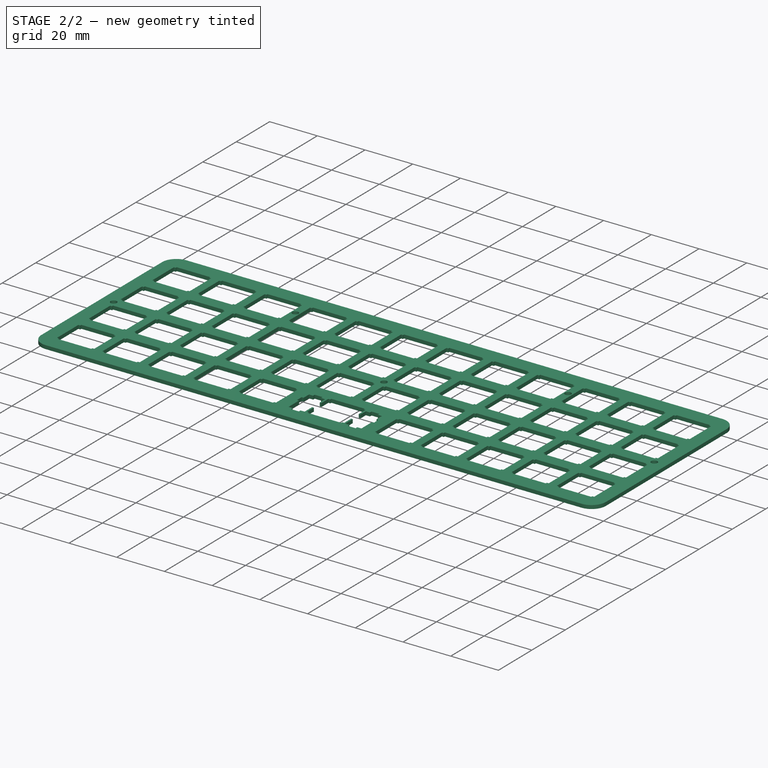
[diagram: stage 2 of 2 — iso view after this stage's code; geometry added in this stage tinted green]
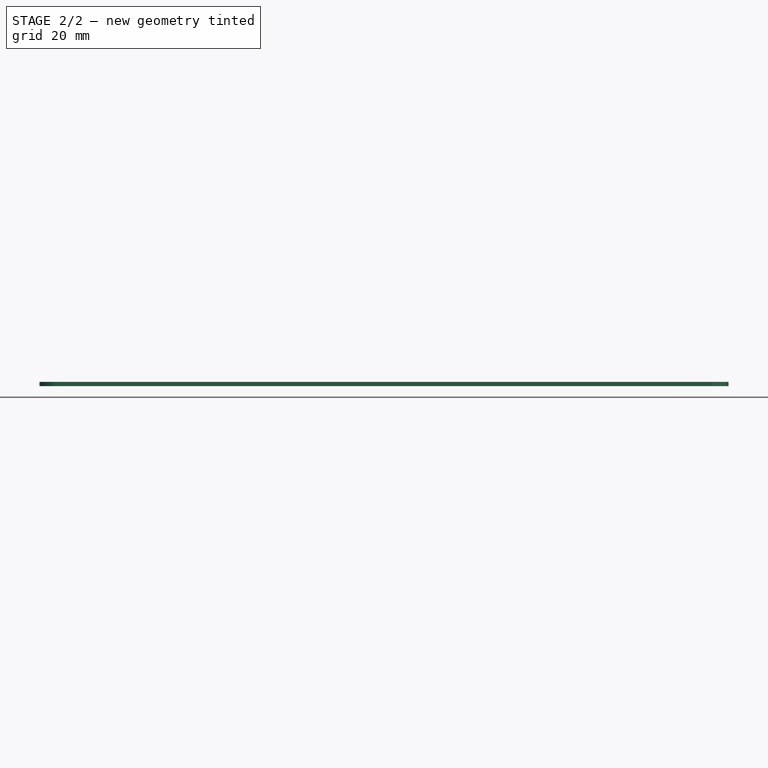
[diagram: stage 2 of 2 — front view after this stage's code; geometry added in this stage tinted green]
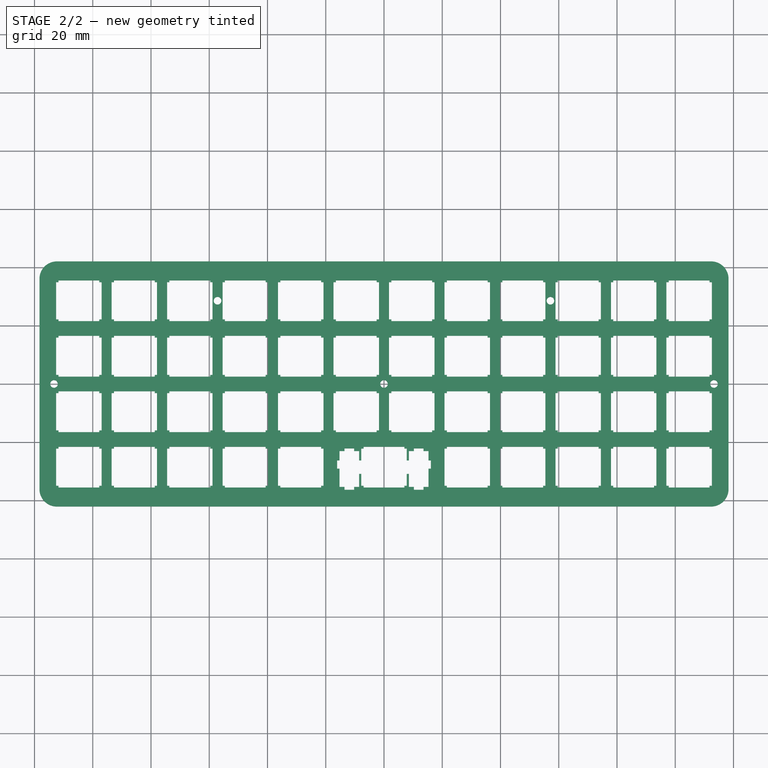
[diagram: stage 2 of 2 — top view after this stage's code; geometry added in this stage tinted green]
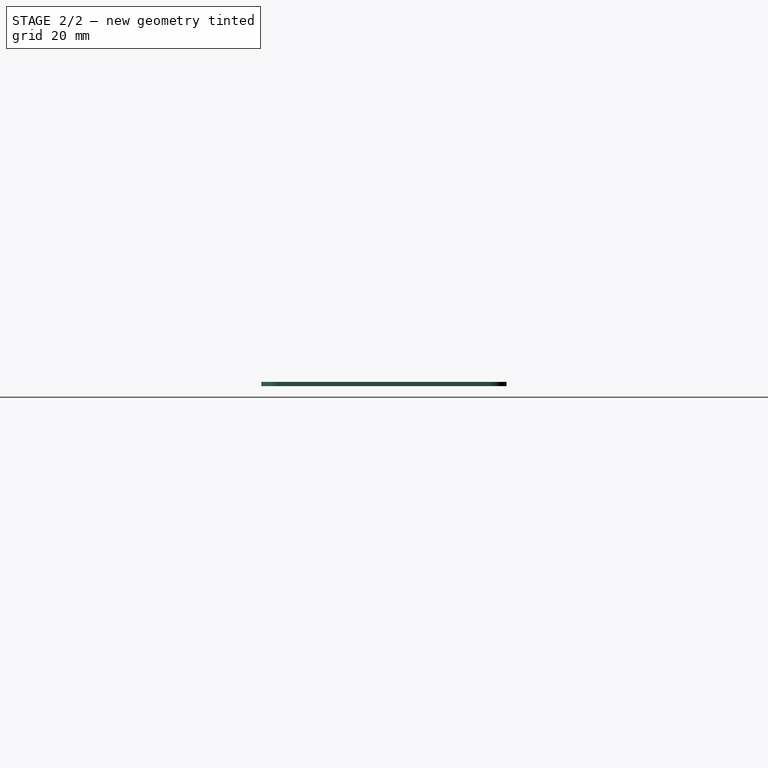
[diagram: stage 2 of 2 — right view after this stage's code; geometry added in this stage tinted green]
FEATURE [Sketcher::SketchObject] Sketch002
  ArcFitTolerance = 1e-06
  AttachmentSupport = -> [XY_Plane]
  ExternalGeometry = -> [Binder]
  FullyConstrained = true
  MakeInternals = false
  MapMode = 5
  sketch-geometry (12):
    g0: LineSegment [constr] StartX=-58.8737 StartY=34.9753 StartZ=0 EndX=-55.4246 EndY=34.9753 EndZ=0
    g1: LineSegment [constr] StartX=-57.1492 StartY=34.9753 StartZ=0 EndX=-57.1492 EndY=22.1747 EndZ=0
    g2: LineSegment [constr] StartX=55.4265 StartY=34.9753 StartZ=0 EndX=58.8755 EndY=34.9753 EndZ=0
    g3: LineSegment [constr] StartX=57.151 StartY=34.9753 StartZ=0 EndX=57.151 EndY=22.1747 EndZ=0
    g4: LineSegment [constr] StartX=-114.298 StartY=-0.0008035 StartZ=0 EndX=-113.298 EndY=-0.0008035 EndZ=0
    g5: LineSegment [constr] StartX=114.301 StartY=-0.0008035 StartZ=0 EndX=113.301 EndY=-0.0008035 EndZ=0
    g6: Circle CenterX=0 CenterY=0 CenterZ=0 NormalX=0 NormalY=0 NormalZ=1 AngleXU=0 Radius=0
    g7: Circle CenterX=0 CenterY=0 CenterZ=0 NormalX=0 NormalY=0 NormalZ=1 AngleXU=0 Radius=1.25
    g8: Circle CenterX=-57.1492 CenterY=28.575 CenterZ=0 NormalX=0 NormalY=0 NormalZ=1 AngleXU=0 Radius=1.25
    g9: Circle CenterX=57.151 CenterY=28.575 CenterZ=0 NormalX=0 NormalY=0 NormalZ=1 AngleXU=0 Radius=1.25
    g10: Circle CenterX=-113.298 CenterY=-0.0008035 CenterZ=0 NormalX=0 NormalY=0 NormalZ=1 AngleXU=0 Radius=1.25
    g11: Circle CenterX=113.301 CenterY=-0.0008035 CenterZ=0 NormalX=0 NormalY=0 NormalZ=1 AngleXU=0 Radius=1.25
  constraints (28):
    c: Coincident(g0,g-6)
    c: Coincident(g0,g-7)
    c: Symmetric(g0,g0,g1)
    c: Vertical(g1)
    c: Horizontal(g-6,g1)
    c: Coincident(g2,g-9)
    c: Coincident(g2,g-8)
    c: Symmetric(g2,g2,g3)
    c: Vertical(g3)
    c: Horizontal(g-9,g3)
    c: Symmetric(g-3,g-5,g4)
    c: Horizontal(g4)
    c: DistanceX(g4,g4) = 1
    c: Symmetric(g-4,g-5,g5)
    c: Equal(g5,g4)
    c: Coincident(g6,g-1)
    c: Tangent(g6,g-1)
    c: Coincident(g7,g6)
    c: Symmetric(g1,g1,g8)
    c: Symmetric(g3,g3,g9)
    c: Coincident(g10,g4)
    c: Coincident(g11,g5)
    c: Equal(g10,g8)
    c: Equal(g8,g7)
    c: Equal(g7,g9)
    c: Equal(g9,g11)
    c: Diameter(g11) = 2.5
    c: Horizontal(g5)
FEATURE [PartDesign::SubShapeBinder] Binder002
  BindCopyOnChange = 0
  BindMode = 0
  ClaimChildren = false
  Context = -> Body [Binder002.]
  Fuse = false
  MakeFace = true
  OffsetFill = false
  OffsetIntersection = false
  OffsetJoinType = 0
  OffsetOpenResult = false
  PartialLoad = false
  Refine = true
  Relative = true
  Support = -> [Sketch002[Edge3,Edge4,Edge2,Edge5,Edge6]]
  _Version = 2
FEATURE [PartDesign::Hole] Hole
  BaseFeature = -> Pad001
  CustomThreadClearance = 0
  Depth = 25
  DepthType = 0
  Diameter = 2.6
  DrillForDepth = false
  DrillPoint = 1
  DrillPointAngle = 118
  HoleCutCountersinkAngle = 90
  HoleCutCustomValues = false
  HoleCutDepth = 0
  HoleCutDiameter = 6.1
  HoleCutType = 0
  ModelThread = false
  Profile = -> Binder002
  Refine = true
  Reversed = true
  Suppressed = false
  Tapered = false
  TaperedAngle = 90
  ThreadClass = 0
  ThreadDepth = 25
  ThreadDepthType = 0
  ThreadDirection = 0
  ThreadFit = 2
  ThreadSize = 6
  ThreadType = 1
  Threaded = false
  UseCustomThreadClearance = false
FEATURE [PartDesign::Body] Body  label="Plate"
  AllowCompound = false
  Group = -> [Binder,Sketch001,Binder001,Pad,Pad001,Sketch002,Binder002,Hole]
  Origin = -> Origin
  Tip = -> Hole
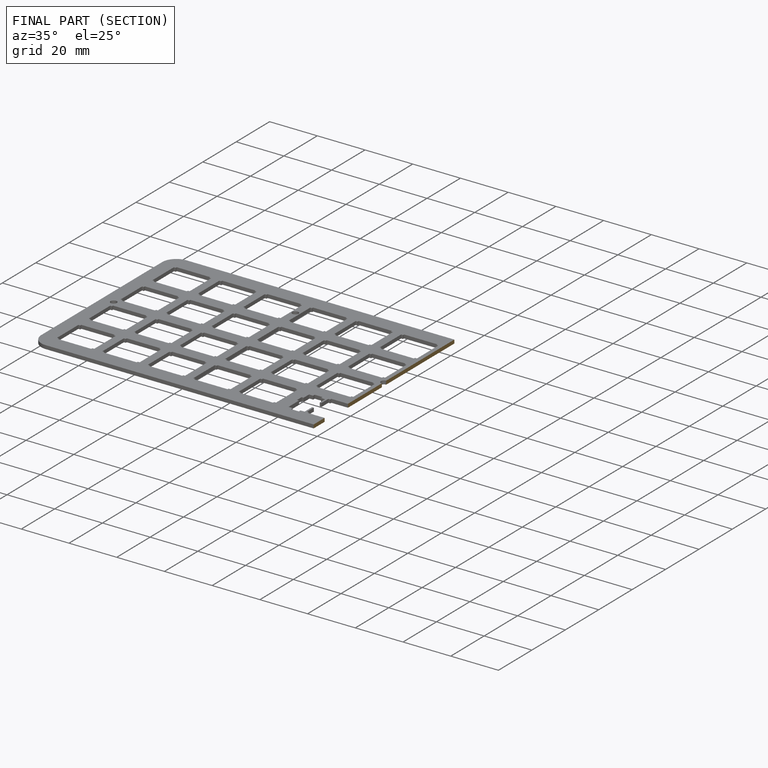
[diagram: finished part — half-section view (interior)]
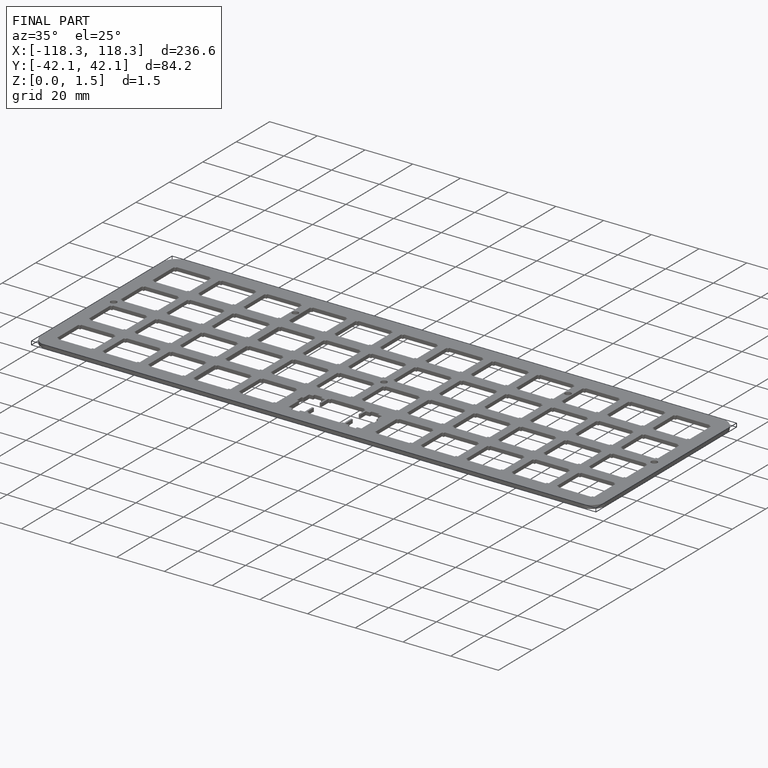
[diagram: finished part — iso view with bounding-box wireframe]
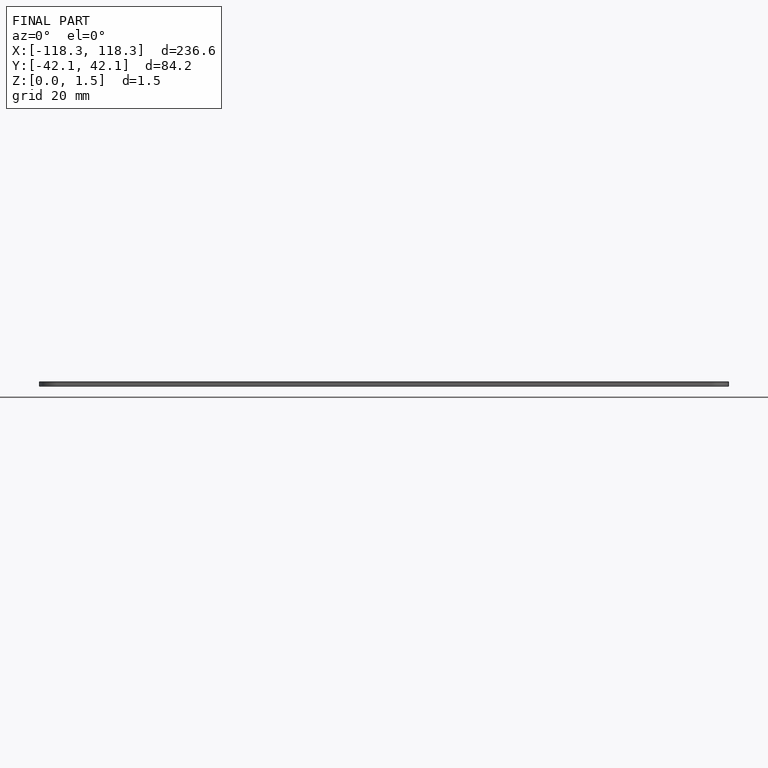
[diagram: finished part — front view with bounding-box wireframe]
